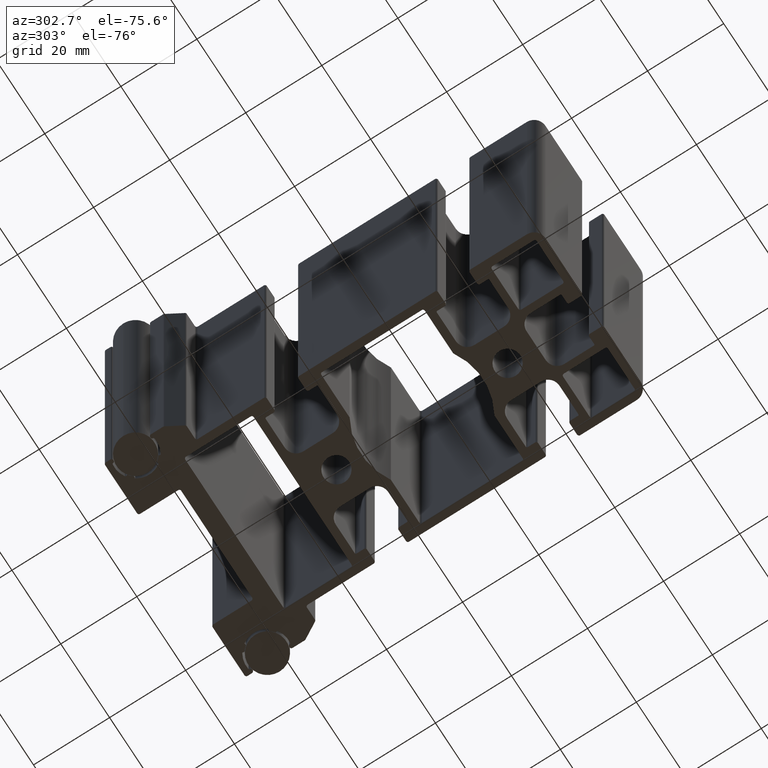
[diagram: clean part render]
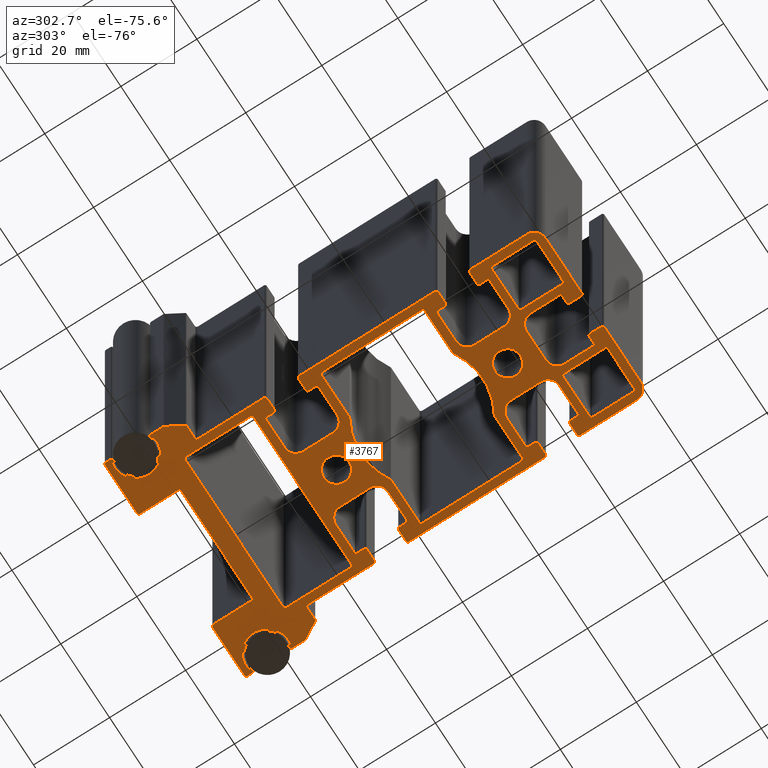
[diagram: same view with one face highlighted and labeled with its STEP entity id]
A machine part, auxiliary view. The second image highlights one B-rep face of the part: STEP entity #3767.
In plain terms, the highlighted planar face has unit normal (0, 0, 1).
Its self-contained STEP definition (entity closure, byte-faithful):
#31=FACE_BOUND('',#363,.T.);
#32=FACE_BOUND('',#364,.T.);
#33=FACE_BOUND('',#365,.T.);
#34=FACE_BOUND('',#366,.T.);
#35=FACE_BOUND('',#367,.T.);
#36=FACE_BOUND('',#368,.T.);
#61=PLANE('',#4080);
#163=FACE_OUTER_BOUND('',#362,.T.);
#362=EDGE_LOOP('',(#2602,#2603,#2604,#2605,#2606,#2607,#2608,#2609,#2610,
#2611,#2612,#2613,#2614,#2615,#2616,#2617,#2618,#2619,#2620,#2621,#2622,
#2623,#2624,#2625,#2626,#2627,#2628,#2629,#2630,#2631,#2632,#2633,#2634,
#2635,#2636,#2637,#2638,#2639,#2640,#2641,#2642,#2643,#2644,#2645,#2646,
#2647,#2648,#2649,#2650,#2651,#2652,#2653,#2654,#2655,#2656,#2657,#2658,
#2659,#2660,#2661,#2662,#2663,#2664,#2665,#2666,#2667,#2668,#2669,#2670,
#2671,#2672,#2673,#2674,#2675,#2676,#2677,#2678,#2679,#2680,#2681,#2682,
#2683,#2684,#2685,#2686,#2687,#2688,#2689,#2690,#2691,#2692,#2693,#2694,
#2695,#2696,#2697,#2698,#2699,#2700,#2701,#2702,#2703,#2704,#2705,#2706,
#2707,#2708,#2709,#2710,#2711,#2712,#2713,#2714,#2715,#2716,#2717,#2718,
#2719,#2720,#2721,#2722,#2723,#2724,#2725,#2726,#2727,#2728,#2729,#2730,
#2731,#2732,#2733,#2734,#2735,#2736,#2737,#2738,#2739,#2740,#2741,#2742,
#2743,#2744,#2745,#2746,#2747,#2748,#2749,#2750,#2751,#2752,#2753));
#363=EDGE_LOOP('',(#2754,#2755,#2756,#2757,#2758,#2759,#2760,#2761,#2762,
#2763,#2764,#2765,#2766,#2767,#2768,#2769));
#364=EDGE_LOOP('',(#2770,#2771,#2772,#2773,#2774,#2775,#2776,#2777));
#365=EDGE_LOOP('',(#2778,#2779,#2780,#2781,#2782,#2783,#2784,#2785));
#366=EDGE_LOOP('',(#2786,#2787,#2788,#2789,#2790,#2791,#2792,#2793));
#367=EDGE_LOOP('',(#2794));
#368=EDGE_LOOP('',(#2795));
#531=CIRCLE('',#3991,0.5);
#533=CIRCLE('',#3995,0.5);
#535=CIRCLE('',#3998,16.);
#537=CIRCLE('',#4001,0.5);
#539=CIRCLE('',#4005,0.5);
#541=CIRCLE('',#4009,0.5);
#543=CIRCLE('',#4013,0.5);
#545=CIRCLE('',#4016,16.);
#547=CIRCLE('',#4019,0.5);
#549=CIRCLE('',#4023,0.5);
#551=CIRCLE('',#4027,0.5);
#553=CIRCLE('',#4031,0.5);
#555=CIRCLE('',#4035,0.5);
#557=CIRCLE('',#4039,0.5);
#559=CIRCLE('',#4043,0.5);
#561=CIRCLE('',#4047,0.5);
#563=CIRCLE('',#4051,0.5);
#565=CIRCLE('',#4055,0.5);
#567=CIRCLE('',#4059,0.5);
#569=CIRCLE('',#4063,0.5);
#571=CIRCLE('',#4067,0.5);
#573=CIRCLE('',#4071,0.5);
#575=CIRCLE('',#4075,3.35);
#577=CIRCLE('',#4078,3.35);
#579=CIRCLE('',#4081,0.5);
#580=CIRCLE('',#4082,0.5);
#581=CIRCLE('',#4083,0.249999999995867);
#582=CIRCLE('',#4084,3.);
#583=CIRCLE('',#4085,3.);
#584=CIRCLE('',#4086,0.249999999995867);
#585=CIRCLE('',#4087,0.5);
#586=CIRCLE('',#4088,0.5);
#587=CIRCLE('',#4089,0.5);
#588=CIRCLE('',#4090,0.5);
#589=CIRCLE('',#4091,0.249999999995867);
#590=CIRCLE('',#4092,3.);
#591=CIRCLE('',#4093,3.);
#592=CIRCLE('',#4094,0.249999999995867);
#593=CIRCLE('',#4095,0.5);
#594=CIRCLE('',#4096,0.5);
#595=CIRCLE('',#4097,3.);
#596=CIRCLE('',#4098,0.5);
#597=CIRCLE('',#4099,0.5);
#598=CIRCLE('',#4100,0.249999999995867);
#599=CIRCLE('',#4101,3.);
#600=CIRCLE('',#4102,3.);
#601=CIRCLE('',#4103,0.249999999995867);
#602=CIRCLE('',#4104,0.5);
#603=CIRCLE('',#4105,0.5);
#604=CIRCLE('',#4106,3.);
#605=CIRCLE('',#4107,0.5);
#606=CIRCLE('',#4108,0.5);
#607=CIRCLE('',#4109,0.249999999995867);
#608=CIRCLE('',#4110,3.);
#609=CIRCLE('',#4111,3.);
#610=CIRCLE('',#4112,0.249999999995867);
#611=CIRCLE('',#4113,0.5);
#612=CIRCLE('',#4114,0.5);
#613=CIRCLE('',#4115,0.5);
#614=CIRCLE('',#4116,0.5);
#615=CIRCLE('',#4117,0.249999999995867);
#616=CIRCLE('',#4118,3.);
#617=CIRCLE('',#4119,3.);
#618=CIRCLE('',#4120,0.249999999995867);
#619=CIRCLE('',#4121,0.5);
#620=CIRCLE('',#4122,0.5);
#621=CIRCLE('',#4123,0.5);
#622=CIRCLE('',#4124,0.5);
#623=CIRCLE('',#4125,0.5);
#624=CIRCLE('',#4126,0.5);
#625=CIRCLE('',#4127,5.05000000000566);
#626=CIRCLE('',#4128,0.3);
#627=CIRCLE('',#4129,0.3);
#628=CIRCLE('',#4130,5.54999999999773);
#629=CIRCLE('',#4131,0.249999999995867);
#630=CIRCLE('',#4132,0.249999999995867);
#631=CIRCLE('',#4133,5.05000000000586);
#632=CIRCLE('',#4134,0.249999999995867);
#633=CIRCLE('',#4135,0.249999999995867);
#634=CIRCLE('',#4136,5.54999999999771);
#635=CIRCLE('',#4137,0.249999999995866);
#636=CIRCLE('',#4138,0.249999999995867);
#637=CIRCLE('',#4139,5.05000000000566);
#638=CIRCLE('',#4140,0.249999999995867);
#639=CIRCLE('',#4141,0.249999999995867);
#640=CIRCLE('',#4142,5.54999999999773);
#641=CIRCLE('',#4143,0.3);
#642=CIRCLE('',#4144,0.3);
#643=CIRCLE('',#4145,5.05000000000565);
#644=CIRCLE('',#4146,0.5);
#645=CIRCLE('',#4147,0.5);
#646=CIRCLE('',#4148,0.5);
#647=CIRCLE('',#4149,0.5);
#648=CIRCLE('',#4150,0.5);
#649=CIRCLE('',#4151,0.5);
#650=CIRCLE('',#4152,0.5);
#651=CIRCLE('',#4153,0.5);
#652=CIRCLE('',#4154,5.05000000000566);
#653=CIRCLE('',#4155,0.3);
#654=CIRCLE('',#4156,0.3);
#655=CIRCLE('',#4157,5.54999999999773);
#656=CIRCLE('',#4158,0.249999999995867);
#657=CIRCLE('',#4159,0.249999999995867);
#658=CIRCLE('',#4160,5.05000000000566);
#659=CIRCLE('',#4161,0.249999999995867);
#660=CIRCLE('',#4162,0.249999999995867);
#661=CIRCLE('',#4163,5.54999999999774);
#662=CIRCLE('',#4164,0.249999999995867);
#663=CIRCLE('',#4165,0.249999999995867);
#664=CIRCLE('',#4166,5.05000000000566);
#665=CIRCLE('',#4167,0.249999999995867);
#666=CIRCLE('',#4168,0.249999999995867);
#667=CIRCLE('',#4169,5.54999999999773);
#668=CIRCLE('',#4170,0.3);
#669=CIRCLE('',#4171,0.3);
#670=CIRCLE('',#4172,5.05000000000564);
#671=CIRCLE('',#4173,0.5);
#672=CIRCLE('',#4174,0.5);
#673=CIRCLE('',#4175,0.5);
#674=CIRCLE('',#4176,0.5);
#775=LINE('',#5685,#1118);
#781=LINE('',#5709,#1124);
#785=LINE('',#5721,#1128);
#789=LINE('',#5733,#1132);
#795=LINE('',#5757,#1138);
#799=LINE('',#5768,#1142);
#803=LINE('',#5781,#1146);
#807=LINE('',#5793,#1150);
#811=LINE('',#5805,#1154);
#815=LINE('',#5816,#1158);
#819=LINE('',#5829,#1162);
#823=LINE('',#5841,#1166);
#827=LINE('',#5853,#1170);
#831=LINE('',#5864,#1174);
#835=LINE('',#5877,#1178);
#839=LINE('',#5889,#1182);
#843=LINE('',#5901,#1186);
#847=LINE('',#5912,#1190);
#851=LINE('',#5929,#1194);
#852=LINE('',#5933,#1195);
#853=LINE('',#5937,#1196);
#854=LINE('',#5941,#1197);
#855=LINE('',#5945,#1198);
#856=LINE('',#5949,#1199);
#857=LINE('',#5953,#1200);
#858=LINE('',#5957,#1201);
#859=LINE('',#5961,#1202);
#860=LINE('',#5965,#1203);
#861=LINE('',#5969,#1204);
#862=LINE('',#5973,#1205);
#863=LINE('',#5977,#1206);
#864=LINE('',#5981,#1207);
#865=LINE('',#5985,#1208);
#866=LINE('',#5989,#1209);
#867=LINE('',#5993,#1210);
#868=LINE('',#5997,#1211);
#869=LINE('',#6001,#1212);
#870=LINE('',#6005,#1213);
#871=LINE('',#6009,#1214);
#872=LINE('',#6013,#1215);
#873=LINE('',#6017,#1216);
#874=LINE('',#6021,#1217);
#875=LINE('',#6025,#1218);
#876=LINE('',#6029,#1219);
#877=LINE('',#6033,#1220);
#878=LINE('',#6037,#1221);
#879=LINE('',#6041,#1222);
#880=LINE('',#6045,#1223);
#881=LINE('',#6049,#1224);
#882=LINE('',#6053,#1225);
#883=LINE('',#6057,#1226);
#884=LINE('',#6061,#1227);
#885=LINE('',#6065,#1228);
#886=LINE('',#6069,#1229);
#887=LINE('',#6073,#1230);
#888=LINE('',#6077,#1231);
#889=LINE('',#6081,#1232);
#890=LINE('',#6085,#1233);
#891=LINE('',#6089,#1234);
#892=LINE('',#6093,#1235);
#893=LINE('',#6097,#1236);
#894=LINE('',#6101,#1237);
#895=LINE('',#6105,#1238);
#896=LINE('',#6109,#1239);
#897=LINE('',#6153,#1240);
#898=LINE('',#6157,#1241);
#899=LINE('',#6161,#1242);
#900=LINE('',#6165,#1243);
#901=LINE('',#6169,#1244);
#902=LINE('',#6173,#1245);
#903=LINE('',#6177,#1246);
#904=LINE('',#6221,#1247);
#905=LINE('',#6225,#1248);
#906=LINE('',#6229,#1249);
#1118=VECTOR('',#4449,10.);
#1124=VECTOR('',#4475,10.);
#1128=VECTOR('',#4487,10.);
#1132=VECTOR('',#4499,10.);
#1138=VECTOR('',#4525,10.);
#1142=VECTOR('',#4537,10.);
#1146=VECTOR('',#4549,10.);
#1150=VECTOR('',#4561,10.);
#1154=VECTOR('',#4573,10.);
#1158=VECTOR('',#4585,10.);
#1162=VECTOR('',#4597,10.);
#1166=VECTOR('',#4609,10.);
#1170=VECTOR('',#4621,10.);
#1174=VECTOR('',#4633,10.);
#1178=VECTOR('',#4645,10.);
#1182=VECTOR('',#4657,10.);
#1186=VECTOR('',#4669,10.);
#1190=VECTOR('',#4681,10.);
#1194=VECTOR('',#4699,10.);
#1195=VECTOR('',#4702,10.);
#1196=VECTOR('',#4705,10.);
#1197=VECTOR('',#4708,10.);
#1198=VECTOR('',#4711,10.);
#1199=VECTOR('',#4714,10.);
#1200=VECTOR('',#4717,10.);
#1201=VECTOR('',#4720,10.);
#1202=VECTOR('',#4723,10.);
#1203=VECTOR('',#4726,10.);
#1204=VECTOR('',#4729,10.);
#1205=VECTOR('',#4732,10.);
#1206=VECTOR('',#4735,10.);
#1207=VECTOR('',#4738,10.);
#1208=VECTOR('',#4741,10.);
#1209=VECTOR('',#4744,10.);
#1210=VECTOR('',#4747,10.);
#1211=VECTOR('',#4750,10.);
#1212=VECTOR('',#4753,10.);
#1213=VECTOR('',#4756,10.);
#1214=VECTOR('',#4759,10.);
#1215=VECTOR('',#4762,10.);
#1216=VECTOR('',#4765,10.);
#1217=VECTOR('',#4768,10.);
#1218=VECTOR('',#4771,10.);
#1219=VECTOR('',#4774,10.);
#1220=VECTOR('',#4777,10.);
#1221=VECTOR('',#4780,10.);
#1222=VECTOR('',#4783,10.);
#1223=VECTOR('',#4786,10.);
#1224=VECTOR('',#4789,10.);
#1225=VECTOR('',#4792,10.);
#1226=VECTOR('',#4795,10.);
#1227=VECTOR('',#4798,10.);
#1228=VECTOR('',#4801,10.);
#1229=VECTOR('',#4804,10.);
#1230=VECTOR('',#4807,10.);
#1231=VECTOR('',#4810,10.);
#1232=VECTOR('',#4813,10.);
#1233=VECTOR('',#4816,10.);
#1234=VECTOR('',#4819,10.);
#1235=VECTOR('',#4822,10.);
#1236=VECTOR('',#4825,10.);
#1237=VECTOR('',#4828,10.);
#1238=VECTOR('',#4831,10.);
#1239=VECTOR('',#4834,10.);
#1240=VECTOR('',#4877,10.);
#1241=VECTOR('',#4880,10.);
#1242=VECTOR('',#4883,10.);
#1243=VECTOR('',#4886,10.);
#1244=VECTOR('',#4889,10.);
#1245=VECTOR('',#4892,10.);
#1246=VECTOR('',#4895,10.);
#1247=VECTOR('',#4938,10.);
#1248=VECTOR('',#4941,10.);
#1249=VECTOR('',#4944,10.);
#1460=VERTEX_POINT('',#5676);
#1461=VERTEX_POINT('',#5678);
#1463=VERTEX_POINT('',#5684);
#1465=VERTEX_POINT('',#5690);
#1467=VERTEX_POINT('',#5696);
#1469=VERTEX_POINT('',#5702);
#1471=VERTEX_POINT('',#5708);
#1473=VERTEX_POINT('',#5714);
#1475=VERTEX_POINT('',#5720);
#1477=VERTEX_POINT('',#5726);
#1479=VERTEX_POINT('',#5732);
#1481=VERTEX_POINT('',#5738);
#1483=VERTEX_POINT('',#5744);
#1485=VERTEX_POINT('',#5750);
#1487=VERTEX_POINT('',#5756);
#1489=VERTEX_POINT('',#5762);
#1492=VERTEX_POINT('',#5772);
#1493=VERTEX_POINT('',#5774);
#1495=VERTEX_POINT('',#5780);
#1497=VERTEX_POINT('',#5786);
#1499=VERTEX_POINT('',#5792);
#1501=VERTEX_POINT('',#5798);
#1503=VERTEX_POINT('',#5804);
#1505=VERTEX_POINT('',#5810);
#1508=VERTEX_POINT('',#5820);
#1509=VERTEX_POINT('',#5822);
#1511=VERTEX_POINT('',#5828);
#1513=VERTEX_POINT('',#5834);
#1515=VERTEX_POINT('',#5840);
#1517=VERTEX_POINT('',#5846);
#1519=VERTEX_POINT('',#5852);
#1521=VERTEX_POINT('',#5858);
#1524=VERTEX_POINT('',#5868);
#1525=VERTEX_POINT('',#5870);
#1527=VERTEX_POINT('',#5876);
#1529=VERTEX_POINT('',#5882);
#1531=VERTEX_POINT('',#5888);
#1533=VERTEX_POINT('',#5894);
#1535=VERTEX_POINT('',#5900);
#1537=VERTEX_POINT('',#5906);
#1539=VERTEX_POINT('',#5915);
#1541=VERTEX_POINT('',#5921);
#1543=VERTEX_POINT('',#5927);
#1544=VERTEX_POINT('',#5928);
#1545=VERTEX_POINT('',#5930);
#1546=VERTEX_POINT('',#5932);
#1547=VERTEX_POINT('',#5934);
#1548=VERTEX_POINT('',#5936);
#1549=VERTEX_POINT('',#5938);
#1550=VERTEX_POINT('',#5940);
#1551=VERTEX_POINT('',#5942);
#1552=VERTEX_POINT('',#5944);
#1553=VERTEX_POINT('',#5946);
#1554=VERTEX_POINT('',#5948);
#1555=VERTEX_POINT('',#5950);
#1556=VERTEX_POINT('',#5952);
#1557=VERTEX_POINT('',#5954);
#1558=VERTEX_POINT('',#5956);
#1559=VERTEX_POINT('',#5958);
#1560=VERTEX_POINT('',#5960);
#1561=VERTEX_POINT('',#5962);
#1562=VERTEX_POINT('',#5964);
#1563=VERTEX_POINT('',#5966);
#1564=VERTEX_POINT('',#5968);
#1565=VERTEX_POINT('',#5970);
#1566=VERTEX_POINT('',#5972);
#1567=VERTEX_POINT('',#5974);
#1568=VERTEX_POINT('',#5976);
#1569=VERTEX_POINT('',#5978);
#1570=VERTEX_POINT('',#5980);
#1571=VERTEX_POINT('',#5982);
#1572=VERTEX_POINT('',#5984);
#1573=VERTEX_POINT('',#5986);
#1574=VERTEX_POINT('',#5988);
#1575=VERTEX_POINT('',#5990);
#1576=VERTEX_POINT('',#5992);
#1577=VERTEX_POINT('',#5994);
#1578=VERTEX_POINT('',#5996);
#1579=VERTEX_POINT('',#5998);
#1580=VERTEX_POINT('',#6000);
#1581=VERTEX_POINT('',#6002);
#1582=VERTEX_POINT('',#6004);
#1583=VERTEX_POINT('',#6006);
#1584=VERTEX_POINT('',#6008);
#1585=VERTEX_POINT('',#6010);
#1586=VERTEX_POINT('',#6012);
#1587=VERTEX_POINT('',#6014);
#1588=VERTEX_POINT('',#6016);
#1589=VERTEX_POINT('',#6018);
#1590=VERTEX_POINT('',#6020);
#1591=VERTEX_POINT('',#6022);
#1592=VERTEX_POINT('',#6024);
#1593=VERTEX_POINT('',#6026);
#1594=VERTEX_POINT('',#6028);
#1595=VERTEX_POINT('',#6030);
#1596=VERTEX_POINT('',#6032);
#1597=VERTEX_POINT('',#6034);
#1598=VERTEX_POINT('',#6036);
#1599=VERTEX_POINT('',#6038);
#1600=VERTEX_POINT('',#6040);
#1601=VERTEX_POINT('',#6042);
#1602=VERTEX_POINT('',#6044);
#1603=VERTEX_POINT('',#6046);
#1604=VERTEX_POINT('',#6048);
#1605=VERTEX_POINT('',#6050);
#1606=VERTEX_POINT('',#6052);
#1607=VERTEX_POINT('',#6054);
#1608=VERTEX_POINT('',#6056);
#1609=VERTEX_POINT('',#6058);
#1610=VERTEX_POINT('',#6060);
#1611=VERTEX_POINT('',#6062);
#1612=VERTEX_POINT('',#6064);
#1613=VERTEX_POINT('',#6066);
#1614=VERTEX_POINT('',#6068);
#1615=VERTEX_POINT('',#6070);
#1616=VERTEX_POINT('',#6072);
#1617=VERTEX_POINT('',#6074);
#1618=VERTEX_POINT('',#6076);
#1619=VERTEX_POINT('',#6078);
#1620=VERTEX_POINT('',#6080);
#1621=VERTEX_POINT('',#6082);
#1622=VERTEX_POINT('',#6084);
#1623=VERTEX_POINT('',#6086);
#1624=VERTEX_POINT('',#6088);
#1625=VERTEX_POINT('',#6090);
#1626=VERTEX_POINT('',#6092);
#1627=VERTEX_POINT('',#6094);
#1628=VERTEX_POINT('',#6096);
#1629=VERTEX_POINT('',#6098);
#1630=VERTEX_POINT('',#6100);
#1631=VERTEX_POINT('',#6102);
#1632=VERTEX_POINT('',#6104);
#1633=VERTEX_POINT('',#6106);
#1634=VERTEX_POINT('',#6108);
#1635=VERTEX_POINT('',#6110);
#1636=VERTEX_POINT('',#6112);
#1637=VERTEX_POINT('',#6114);
#1638=VERTEX_POINT('',#6116);
#1639=VERTEX_POINT('',#6118);
#1640=VERTEX_POINT('',#6120);
#1641=VERTEX_POINT('',#6122);
#1642=VERTEX_POINT('',#6124);
#1643=VERTEX_POINT('',#6126);
#1644=VERTEX_POINT('',#6128);
#1645=VERTEX_POINT('',#6130);
#1646=VERTEX_POINT('',#6132);
#1647=VERTEX_POINT('',#6134);
#1648=VERTEX_POINT('',#6136);
#1649=VERTEX_POINT('',#6138);
#1650=VERTEX_POINT('',#6140);
#1651=VERTEX_POINT('',#6142);
#1652=VERTEX_POINT('',#6144);
#1653=VERTEX_POINT('',#6146);
#1654=VERTEX_POINT('',#6148);
#1655=VERTEX_POINT('',#6150);
#1656=VERTEX_POINT('',#6152);
#1657=VERTEX_POINT('',#6154);
#1658=VERTEX_POINT('',#6156);
#1659=VERTEX_POINT('',#6158);
#1660=VERTEX_POINT('',#6160);
#1661=VERTEX_POINT('',#6162);
#1662=VERTEX_POINT('',#6164);
#1663=VERTEX_POINT('',#6166);
#1664=VERTEX_POINT('',#6168);
#1665=VERTEX_POINT('',#6170);
#1666=VERTEX_POINT('',#6172);
#1667=VERTEX_POINT('',#6174);
#1668=VERTEX_POINT('',#6176);
#1669=VERTEX_POINT('',#6178);
#1670=VERTEX_POINT('',#6180);
#1671=VERTEX_POINT('',#6182);
#1672=VERTEX_POINT('',#6184);
#1673=VERTEX_POINT('',#6186);
#1674=VERTEX_POINT('',#6188);
#1675=VERTEX_POINT('',#6190);
#1676=VERTEX_POINT('',#6192);
#1677=VERTEX_POINT('',#6194);
#1678=VERTEX_POINT('',#6196);
#1679=VERTEX_POINT('',#6198);
#1680=VERTEX_POINT('',#6200);
#1681=VERTEX_POINT('',#6202);
#1682=VERTEX_POINT('',#6204);
#1683=VERTEX_POINT('',#6206);
#1684=VERTEX_POINT('',#6208);
#1685=VERTEX_POINT('',#6210);
#1686=VERTEX_POINT('',#6212);
#1687=VERTEX_POINT('',#6214);
#1688=VERTEX_POINT('',#6216);
#1689=VERTEX_POINT('',#6218);
#1690=VERTEX_POINT('',#6220);
#1691=VERTEX_POINT('',#6222);
#1692=VERTEX_POINT('',#6224);
#1693=VERTEX_POINT('',#6226);
#1694=VERTEX_POINT('',#6228);
#1850=EDGE_CURVE('',#1461,#1460,#531,.T.);
#1853=EDGE_CURVE('',#1463,#1461,#775,.T.);
#1856=EDGE_CURVE('',#1465,#1463,#533,.T.);
#1859=EDGE_CURVE('',#1467,#1465,#535,.T.);
#1862=EDGE_CURVE('',#1469,#1467,#537,.T.);
#1865=EDGE_CURVE('',#1471,#1469,#781,.T.);
#1868=EDGE_CURVE('',#1473,#1471,#539,.T.);
#1871=EDGE_CURVE('',#1475,#1473,#785,.T.);
#1874=EDGE_CURVE('',#1477,#1475,#541,.T.);
#1877=EDGE_CURVE('',#1479,#1477,#789,.T.);
#1880=EDGE_CURVE('',#1481,#1479,#543,.T.);
#1883=EDGE_CURVE('',#1483,#1481,#545,.T.);
#1886=EDGE_CURVE('',#1485,#1483,#547,.T.);
#1889=EDGE_CURVE('',#1487,#1485,#795,.T.);
#1892=EDGE_CURVE('',#1489,#1487,#549,.T.);
#1895=EDGE_CURVE('',#1460,#1489,#799,.T.);
#1898=EDGE_CURVE('',#1493,#1492,#551,.T.);
#1901=EDGE_CURVE('',#1495,#1493,#803,.T.);
#1904=EDGE_CURVE('',#1497,#1495,#553,.T.);
#1907=EDGE_CURVE('',#1499,#1497,#807,.T.);
#1910=EDGE_CURVE('',#1501,#1499,#555,.T.);
#1913=EDGE_CURVE('',#1503,#1501,#811,.T.);
#1916=EDGE_CURVE('',#1505,#1503,#557,.T.);
#1919=EDGE_CURVE('',#1492,#1505,#815,.T.);
#1922=EDGE_CURVE('',#1509,#1508,#559,.T.);
#1925=EDGE_CURVE('',#1511,#1509,#819,.T.);
#1928=EDGE_CURVE('',#1513,#1511,#561,.T.);
#1931=EDGE_CURVE('',#1515,#1513,#823,.T.);
#1934=EDGE_CURVE('',#1517,#1515,#563,.T.);
#1937=EDGE_CURVE('',#1519,#1517,#827,.T.);
#1940=EDGE_CURVE('',#1521,#1519,#565,.T.);
#1943=EDGE_CURVE('',#1508,#1521,#831,.T.);
#1946=EDGE_CURVE('',#1525,#1524,#567,.T.);
#1949=EDGE_CURVE('',#1527,#1525,#835,.T.);
#1952=EDGE_CURVE('',#1529,#1527,#569,.T.);
#1955=EDGE_CURVE('',#1531,#1529,#839,.T.);
#1958=EDGE_CURVE('',#1533,#1531,#571,.T.);
#1961=EDGE_CURVE('',#1535,#1533,#843,.T.);
#1964=EDGE_CURVE('',#1537,#1535,#573,.T.);
#1967=EDGE_CURVE('',#1524,#1537,#847,.T.);
#1969=EDGE_CURVE('',#1539,#1539,#575,.T.);
#1972=EDGE_CURVE('',#1541,#1541,#577,.T.);
#1975=EDGE_CURVE('',#1543,#1544,#851,.T.);
#1976=EDGE_CURVE('',#1544,#1545,#579,.T.);
#1977=EDGE_CURVE('',#1545,#1546,#852,.T.);
#1978=EDGE_CURVE('',#1546,#1547,#580,.T.);
#1979=EDGE_CURVE('',#1547,#1548,#853,.T.);
#1980=EDGE_CURVE('',#1548,#1549,#581,.T.);
#1981=EDGE_CURVE('',#1549,#1550,#854,.T.);
#1982=EDGE_CURVE('',#1550,#1551,#582,.T.);
#1983=EDGE_CURVE('',#1551,#1552,#855,.T.);
#1984=EDGE_CURVE('',#1552,#1553,#583,.T.);
#1985=EDGE_CURVE('',#1553,#1554,#856,.T.);
#1986=EDGE_CURVE('',#1554,#1555,#584,.T.);
#1987=EDGE_CURVE('',#1555,#1556,#857,.T.);
#1988=EDGE_CURVE('',#1556,#1557,#585,.T.);
#1989=EDGE_CURVE('',#1557,#1558,#858,.T.);
#1990=EDGE_CURVE('',#1558,#1559,#586,.T.);
#1991=EDGE_CURVE('',#1559,#1560,#859,.T.);
#1992=EDGE_CURVE('',#1560,#1561,#587,.T.);
#1993=EDGE_CURVE('',#1561,#1562,#860,.T.);
#1994=EDGE_CURVE('',#1562,#1563,#588,.T.);
#1995=EDGE_CURVE('',#1563,#1564,#861,.T.);
#1996=EDGE_CURVE('',#1564,#1565,#589,.T.);
#1997=EDGE_CURVE('',#1565,#1566,#862,.T.);
#1998=EDGE_CURVE('',#1566,#1567,#590,.T.);
#1999=EDGE_CURVE('',#1567,#1568,#863,.T.);
#2000=EDGE_CURVE('',#1568,#1569,#591,.T.);
#2001=EDGE_CURVE('',#1569,#1570,#864,.T.);
#2002=EDGE_CURVE('',#1570,#1571,#592,.T.);
#2003=EDGE_CURVE('',#1571,#1572,#865,.T.);
#2004=EDGE_CURVE('',#1572,#1573,#593,.T.);
#2005=EDGE_CURVE('',#1573,#1574,#866,.T.);
#2006=EDGE_CURVE('',#1574,#1575,#594,.T.);
#2007=EDGE_CURVE('',#1575,#1576,#867,.T.);
#2008=EDGE_CURVE('',#1576,#1577,#595,.T.);
#2009=EDGE_CURVE('',#1577,#1578,#868,.T.);
#2010=EDGE_CURVE('',#1578,#1579,#596,.T.);
#2011=EDGE_CURVE('',#1579,#1580,#869,.T.);
#2012=EDGE_CURVE('',#1580,#1581,#597,.T.);
#2013=EDGE_CURVE('',#1581,#1582,#870,.T.);
#2014=EDGE_CURVE('',#1582,#1583,#598,.T.);
#2015=EDGE_CURVE('',#1583,#1584,#871,.T.);
#2016=EDGE_CURVE('',#1584,#1585,#599,.T.);
#2017=EDGE_CURVE('',#1585,#1586,#872,.T.);
#2018=EDGE_CURVE('',#1586,#1587,#600,.T.);
#2019=EDGE_CURVE('',#1587,#1588,#873,.T.);
#2020=EDGE_CURVE('',#1588,#1589,#601,.T.);
#2021=EDGE_CURVE('',#1589,#1590,#874,.T.);
#2022=EDGE_CURVE('',#1590,#1591,#602,.T.);
#2023=EDGE_CURVE('',#1591,#1592,#875,.T.);
#2024=EDGE_CURVE('',#1592,#1593,#603,.T.);
#2025=EDGE_CURVE('',#1593,#1594,#876,.T.);
#2026=EDGE_CURVE('',#1594,#1595,#604,.T.);
#2027=EDGE_CURVE('',#1595,#1596,#877,.T.);
#2028=EDGE_CURVE('',#1596,#1597,#605,.T.);
#2029=EDGE_CURVE('',#1597,#1598,#878,.T.);
#2030=EDGE_CURVE('',#1598,#1599,#606,.T.);
#2031=EDGE_CURVE('',#1599,#1600,#879,.T.);
#2032=EDGE_CURVE('',#1600,#1601,#607,.T.);
#2033=EDGE_CURVE('',#1601,#1602,#880,.T.);
#2034=EDGE_CURVE('',#1602,#1603,#608,.T.);
#2035=EDGE_CURVE('',#1603,#1604,#881,.T.);
#2036=EDGE_CURVE('',#1604,#1605,#609,.T.);
#2037=EDGE_CURVE('',#1605,#1606,#882,.T.);
#2038=EDGE_CURVE('',#1606,#1607,#610,.T.);
#2039=EDGE_CURVE('',#1607,#1608,#883,.T.);
#2040=EDGE_CURVE('',#1608,#1609,#611,.T.);
#2041=EDGE_CURVE('',#1609,#1610,#884,.T.);
#2042=EDGE_CURVE('',#1610,#1611,#612,.T.);
#2043=EDGE_CURVE('',#1611,#1612,#885,.T.);
#2044=EDGE_CURVE('',#1612,#1613,#613,.T.);
#2045=EDGE_CURVE('',#1613,#1614,#886,.T.);
#2046=EDGE_CURVE('',#1614,#1615,#614,.T.);
#2047=EDGE_CURVE('',#1615,#1616,#887,.T.);
#2048=EDGE_CURVE('',#1616,#1617,#615,.T.);
#2049=EDGE_CURVE('',#1617,#1618,#888,.T.);
#2050=EDGE_CURVE('',#1618,#1619,#616,.T.);
#2051=EDGE_CURVE('',#1619,#1620,#889,.T.);
#2052=EDGE_CURVE('',#1620,#1621,#617,.T.);
#2053=EDGE_CURVE('',#1621,#1622,#890,.T.);
#2054=EDGE_CURVE('',#1622,#1623,#618,.T.);
#2055=EDGE_CURVE('',#1623,#1624,#891,.T.);
#2056=EDGE_CURVE('',#1624,#1625,#619,.T.);
#2057=EDGE_CURVE('',#1625,#1626,#892,.T.);
#2058=EDGE_CURVE('',#1626,#1627,#620,.T.);
#2059=EDGE_CURVE('',#1627,#1628,#893,.T.);
#2060=EDGE_CURVE('',#1628,#1629,#621,.T.);
#2061=EDGE_CURVE('',#1629,#1630,#894,.T.);
#2062=EDGE_CURVE('',#1630,#1631,#622,.T.);
#2063=EDGE_CURVE('',#1631,#1632,#895,.T.);
#2064=EDGE_CURVE('',#1632,#1633,#623,.T.);
#2065=EDGE_CURVE('',#1633,#1634,#896,.T.);
#2066=EDGE_CURVE('',#1634,#1635,#624,.T.);
#2067=EDGE_CURVE('',#1635,#1636,#625,.T.);
#2068=EDGE_CURVE('',#1636,#1637,#626,.T.);
#2069=EDGE_CURVE('',#1637,#1638,#627,.T.);
#2070=EDGE_CURVE('',#1638,#1639,#628,.T.);
#2071=EDGE_CURVE('',#1639,#1640,#629,.T.);
#2072=EDGE_CURVE('',#1640,#1641,#630,.T.);
#2073=EDGE_CURVE('',#1641,#1642,#631,.T.);
#2074=EDGE_CURVE('',#1642,#1643,#632,.T.);
#2075=EDGE_CURVE('',#1643,#1644,#633,.T.);
#2076=EDGE_CURVE('',#1644,#1645,#634,.T.);
#2077=EDGE_CURVE('',#1645,#1646,#635,.T.);
#2078=EDGE_CURVE('',#1646,#1647,#636,.T.);
#2079=EDGE_CURVE('',#1647,#1648,#637,.T.);
#2080=EDGE_CURVE('',#1648,#1649,#638,.T.);
#2081=EDGE_CURVE('',#1649,#1650,#639,.T.);
#2082=EDGE_CURVE('',#1650,#1651,#640,.T.);
#2083=EDGE_CURVE('',#1651,#1652,#641,.T.);
#2084=EDGE_CURVE('',#1652,#1653,#642,.T.);
#2085=EDGE_CURVE('',#1653,#1654,#643,.T.);
#2086=EDGE_CURVE('',#1654,#1655,#644,.T.);
#2087=EDGE_CURVE('',#1655,#1656,#897,.T.);
#2088=EDGE_CURVE('',#1656,#1657,#645,.T.);
#2089=EDGE_CURVE('',#1657,#1658,#898,.T.);
#2090=EDGE_CURVE('',#1658,#1659,#646,.T.);
#2091=EDGE_CURVE('',#1659,#1660,#899,.T.);
#2092=EDGE_CURVE('',#1660,#1661,#647,.T.);
#2093=EDGE_CURVE('',#1661,#1662,#900,.T.);
#2094=EDGE_CURVE('',#1662,#1663,#648,.T.);
#2095=EDGE_CURVE('',#1663,#1664,#901,.T.);
#2096=EDGE_CURVE('',#1664,#1665,#649,.T.);
#2097=EDGE_CURVE('',#1665,#1666,#902,.T.);
#2098=EDGE_CURVE('',#1666,#1667,#650,.T.);
#2099=EDGE_CURVE('',#1667,#1668,#903,.T.);
#2100=EDGE_CURVE('',#1668,#1669,#651,.T.);
#2101=EDGE_CURVE('',#1669,#1670,#652,.T.);
#2102=EDGE_CURVE('',#1670,#1671,#653,.T.);
#2103=EDGE_CURVE('',#1671,#1672,#654,.T.);
#2104=EDGE_CURVE('',#1672,#1673,#655,.T.);
#2105=EDGE_CURVE('',#1673,#1674,#656,.T.);
#2106=EDGE_CURVE('',#1674,#1675,#657,.T.);
#2107=EDGE_CURVE('',#1675,#1676,#658,.T.);
#2108=EDGE_CURVE('',#1676,#1677,#659,.T.);
#2109=EDGE_CURVE('',#1677,#1678,#660,.T.);
#2110=EDGE_CURVE('',#1678,#1679,#661,.T.);
#2111=EDGE_CURVE('',#1679,#1680,#662,.T.);
#2112=EDGE_CURVE('',#1680,#1681,#663,.T.);
#2113=EDGE_CURVE('',#1681,#1682,#664,.T.);
#2114=EDGE_CURVE('',#1682,#1683,#665,.T.);
#2115=EDGE_CURVE('',#1683,#1684,#666,.T.);
#2116=EDGE_CURVE('',#1684,#1685,#667,.T.);
#2117=EDGE_CURVE('',#1685,#1686,#668,.T.);
#2118=EDGE_CURVE('',#1686,#1687,#669,.T.);
#2119=EDGE_CURVE('',#1687,#1688,#670,.T.);
#2120=EDGE_CURVE('',#1688,#1689,#671,.T.);
#2121=EDGE_CURVE('',#1689,#1690,#904,.T.);
#2122=EDGE_CURVE('',#1690,#1691,#672,.T.);
#2123=EDGE_CURVE('',#1691,#1692,#905,.T.);
#2124=EDGE_CURVE('',#1692,#1693,#673,.T.);
#2125=EDGE_CURVE('',#1693,#1694,#906,.T.);
#2126=EDGE_CURVE('',#1694,#1543,#674,.T.);
#2602=ORIENTED_EDGE('',*,*,#1975,.T.);
#2603=ORIENTED_EDGE('',*,*,#1976,.T.);
#2604=ORIENTED_EDGE('',*,*,#1977,.T.);
#2605=ORIENTED_EDGE('',*,*,#1978,.T.);
#2606=ORIENTED_EDGE('',*,*,#1979,.T.);
#2607=ORIENTED_EDGE('',*,*,#1980,.T.);
#2608=ORIENTED_EDGE('',*,*,#1981,.T.);
#2609=ORIENTED_EDGE('',*,*,#1982,.T.);
#2610=ORIENTED_EDGE('',*,*,#1983,.T.);
#2611=ORIENTED_EDGE('',*,*,#1984,.T.);
#2612=ORIENTED_EDGE('',*,*,#1985,.T.);
#2613=ORIENTED_EDGE('',*,*,#1986,.T.);
#2614=ORIENTED_EDGE('',*,*,#1987,.T.);
#2615=ORIENTED_EDGE('',*,*,#1988,.T.);
#2616=ORIENTED_EDGE('',*,*,#1989,.T.);
#2617=ORIENTED_EDGE('',*,*,#1990,.T.);
#2618=ORIENTED_EDGE('',*,*,#1991,.T.);
#2619=ORIENTED_EDGE('',*,*,#1992,.T.);
#2620=ORIENTED_EDGE('',*,*,#1993,.T.);
#2621=ORIENTED_EDGE('',*,*,#1994,.T.);
#2622=ORIENTED_EDGE('',*,*,#1995,.T.);
#2623=ORIENTED_EDGE('',*,*,#1996,.T.);
#2624=ORIENTED_EDGE('',*,*,#1997,.T.);
#2625=ORIENTED_EDGE('',*,*,#1998,.T.);
#2626=ORIENTED_EDGE('',*,*,#1999,.T.);
#2627=ORIENTED_EDGE('',*,*,#2000,.T.);
#2628=ORIENTED_EDGE('',*,*,#2001,.T.);
#2629=ORIENTED_EDGE('',*,*,#2002,.T.);
#2630=ORIENTED_EDGE('',*,*,#2003,.T.);
#2631=ORIENTED_EDGE('',*,*,#2004,.T.);
#2632=ORIENTED_EDGE('',*,*,#2005,.T.);
#2633=ORIENTED_EDGE('',*,*,#2006,.T.);
#2634=ORIENTED_EDGE('',*,*,#2007,.T.);
#2635=ORIENTED_EDGE('',*,*,#2008,.T.);
#2636=ORIENTED_EDGE('',*,*,#2009,.T.);
#2637=ORIENTED_EDGE('',*,*,#2010,.T.);
#2638=ORIENTED_EDGE('',*,*,#2011,.T.);
#2639=ORIENTED_EDGE('',*,*,#2012,.T.);
#2640=ORIENTED_EDGE('',*,*,#2013,.T.);
#2641=ORIENTED_EDGE('',*,*,#2014,.T.);
#2642=ORIENTED_EDGE('',*,*,#2015,.T.);
#2643=ORIENTED_EDGE('',*,*,#2016,.T.);
#2644=ORIENTED_EDGE('',*,*,#2017,.T.);
#2645=ORIENTED_EDGE('',*,*,#2018,.T.);
#2646=ORIENTED_EDGE('',*,*,#2019,.T.);
#2647=ORIENTED_EDGE('',*,*,#2020,.T.);
#2648=ORIENTED_EDGE('',*,*,#2021,.T.);
#2649=ORIENTED_EDGE('',*,*,#2022,.T.);
#2650=ORIENTED_EDGE('',*,*,#2023,.T.);
#2651=ORIENTED_EDGE('',*,*,#2024,.T.);
#2652=ORIENTED_EDGE('',*,*,#2025,.T.);
#2653=ORIENTED_EDGE('',*,*,#2026,.T.);
#2654=ORIENTED_EDGE('',*,*,#2027,.T.);
#2655=ORIENTED_EDGE('',*,*,#2028,.T.);
#2656=ORIENTED_EDGE('',*,*,#2029,.T.);
#2657=ORIENTED_EDGE('',*,*,#2030,.T.);
#2658=ORIENTED_EDGE('',*,*,#2031,.T.);
#2659=ORIENTED_EDGE('',*,*,#2032,.T.);
#2660=ORIENTED_EDGE('',*,*,#2033,.T.);
#2661=ORIENTED_EDGE('',*,*,#2034,.T.);
#2662=ORIENTED_EDGE('',*,*,#2035,.T.);
#2663=ORIENTED_EDGE('',*,*,#2036,.T.);
#2664=ORIENTED_EDGE('',*,*,#2037,.T.);
#2665=ORIENTED_EDGE('',*,*,#2038,.T.);
#2666=ORIENTED_EDGE('',*,*,#2039,.T.);
#2667=ORIENTED_EDGE('',*,*,#2040,.T.);
#2668=ORIENTED_EDGE('',*,*,#2041,.T.);
#2669=ORIENTED_EDGE('',*,*,#2042,.T.);
#2670=ORIENTED_EDGE('',*,*,#2043,.T.);
#2671=ORIENTED_EDGE('',*,*,#2044,.T.);
#2672=ORIENTED_EDGE('',*,*,#2045,.T.);
#2673=ORIENTED_EDGE('',*,*,#2046,.T.);
#2674=ORIENTED_EDGE('',*,*,#2047,.T.);
#2675=ORIENTED_EDGE('',*,*,#2048,.T.);
#2676=ORIENTED_EDGE('',*,*,#2049,.T.);
#2677=ORIENTED_EDGE('',*,*,#2050,.T.);
#2678=ORIENTED_EDGE('',*,*,#2051,.T.);
#2679=ORIENTED_EDGE('',*,*,#2052,.T.);
#2680=ORIENTED_EDGE('',*,*,#2053,.T.);
#2681=ORIENTED_EDGE('',*,*,#2054,.T.);
#2682=ORIENTED_EDGE('',*,*,#2055,.T.);
#2683=ORIENTED_EDGE('',*,*,#2056,.T.);
#2684=ORIENTED_EDGE('',*,*,#2057,.T.);
#2685=ORIENTED_EDGE('',*,*,#2058,.T.);
#2686=ORIENTED_EDGE('',*,*,#2059,.T.);
#2687=ORIENTED_EDGE('',*,*,#2060,.T.);
#2688=ORIENTED_EDGE('',*,*,#2061,.T.);
#2689=ORIENTED_EDGE('',*,*,#2062,.T.);
#2690=ORIENTED_EDGE('',*,*,#2063,.T.);
#2691=ORIENTED_EDGE('',*,*,#2064,.T.);
#2692=ORIENTED_EDGE('',*,*,#2065,.T.);
#2693=ORIENTED_EDGE('',*,*,#2066,.T.);
#2694=ORIENTED_EDGE('',*,*,#2067,.T.);
#2695=ORIENTED_EDGE('',*,*,#2068,.T.);
#2696=ORIENTED_EDGE('',*,*,#2069,.T.);
#2697=ORIENTED_EDGE('',*,*,#2070,.T.);
#2698=ORIENTED_EDGE('',*,*,#2071,.T.);
#2699=ORIENTED_EDGE('',*,*,#2072,.T.);
#2700=ORIENTED_EDGE('',*,*,#2073,.T.);
#2701=ORIENTED_EDGE('',*,*,#2074,.T.);
#2702=ORIENTED_EDGE('',*,*,#2075,.T.);
#2703=ORIENTED_EDGE('',*,*,#2076,.T.);
#2704=ORIENTED_EDGE('',*,*,#2077,.T.);
#2705=ORIENTED_EDGE('',*,*,#2078,.T.);
#2706=ORIENTED_EDGE('',*,*,#2079,.T.);
#2707=ORIENTED_EDGE('',*,*,#2080,.T.);
#2708=ORIENTED_EDGE('',*,*,#2081,.T.);
#2709=ORIENTED_EDGE('',*,*,#2082,.T.);
#2710=ORIENTED_EDGE('',*,*,#2083,.T.);
#2711=ORIENTED_EDGE('',*,*,#2084,.T.);
#2712=ORIENTED_EDGE('',*,*,#2085,.T.);
#2713=ORIENTED_EDGE('',*,*,#2086,.T.);
#2714=ORIENTED_EDGE('',*,*,#2087,.T.);
#2715=ORIENTED_EDGE('',*,*,#2088,.T.);
#2716=ORIENTED_EDGE('',*,*,#2089,.T.);
#2717=ORIENTED_EDGE('',*,*,#2090,.T.);
#2718=ORIENTED_EDGE('',*,*,#2091,.T.);
#2719=ORIENTED_EDGE('',*,*,#2092,.T.);
#2720=ORIENTED_EDGE('',*,*,#2093,.T.);
#2721=ORIENTED_EDGE('',*,*,#2094,.T.);
#2722=ORIENTED_EDGE('',*,*,#2095,.T.);
#2723=ORIENTED_EDGE('',*,*,#2096,.T.);
#2724=ORIENTED_EDGE('',*,*,#2097,.T.);
#2725=ORIENTED_EDGE('',*,*,#2098,.T.);
#2726=ORIENTED_EDGE('',*,*,#2099,.T.);
#2727=ORIENTED_EDGE('',*,*,#2100,.T.);
#2728=ORIENTED_EDGE('',*,*,#2101,.T.);
#2729=ORIENTED_EDGE('',*,*,#2102,.T.);
#2730=ORIENTED_EDGE('',*,*,#2103,.T.);
#2731=ORIENTED_EDGE('',*,*,#2104,.T.);
#2732=ORIENTED_EDGE('',*,*,#2105,.T.);
#2733=ORIENTED_EDGE('',*,*,#2106,.T.);
#2734=ORIENTED_EDGE('',*,*,#2107,.T.);
#2735=ORIENTED_EDGE('',*,*,#2108,.T.);
#2736=ORIENTED_EDGE('',*,*,#2109,.T.);
#2737=ORIENTED_EDGE('',*,*,#2110,.T.);
#2738=ORIENTED_EDGE('',*,*,#2111,.T.);
#2739=ORIENTED_EDGE('',*,*,#2112,.T.);
#2740=ORIENTED_EDGE('',*,*,#2113,.T.);
#2741=ORIENTED_EDGE('',*,*,#2114,.T.);
#2742=ORIENTED_EDGE('',*,*,#2115,.T.);
#2743=ORIENTED_EDGE('',*,*,#2116,.T.);
#2744=ORIENTED_EDGE('',*,*,#2117,.T.);
#2745=ORIENTED_EDGE('',*,*,#2118,.T.);
#2746=ORIENTED_EDGE('',*,*,#2119,.T.);
#2747=ORIENTED_EDGE('',*,*,#2120,.T.);
#2748=ORIENTED_EDGE('',*,*,#2121,.T.);
#2749=ORIENTED_EDGE('',*,*,#2122,.T.);
#2750=ORIENTED_EDGE('',*,*,#2123,.T.);
#2751=ORIENTED_EDGE('',*,*,#2124,.T.);
#2752=ORIENTED_EDGE('',*,*,#2125,.T.);
#2753=ORIENTED_EDGE('',*,*,#2126,.T.);
#2754=ORIENTED_EDGE('',*,*,#1850,.T.);
#2755=ORIENTED_EDGE('',*,*,#1895,.T.);
#2756=ORIENTED_EDGE('',*,*,#1892,.T.);
#2757=ORIENTED_EDGE('',*,*,#1889,.T.);
#2758=ORIENTED_EDGE('',*,*,#1886,.T.);
#2759=ORIENTED_EDGE('',*,*,#1883,.T.);
#2760=ORIENTED_EDGE('',*,*,#1880,.T.);
#2761=ORIENTED_EDGE('',*,*,#1877,.T.);
#2762=ORIENTED_EDGE('',*,*,#1874,.T.);
#2763=ORIENTED_EDGE('',*,*,#1871,.T.);
#2764=ORIENTED_EDGE('',*,*,#1868,.T.);
#2765=ORIENTED_EDGE('',*,*,#1865,.T.);
#2766=ORIENTED_EDGE('',*,*,#1862,.T.);
#2767=ORIENTED_EDGE('',*,*,#1859,.T.);
#2768=ORIENTED_EDGE('',*,*,#1856,.T.);
#2769=ORIENTED_EDGE('',*,*,#1853,.T.);
#2770=ORIENTED_EDGE('',*,*,#1898,.T.);
#2771=ORIENTED_EDGE('',*,*,#1919,.T.);
#2772=ORIENTED_EDGE('',*,*,#1916,.T.);
#2773=ORIENTED_EDGE('',*,*,#1913,.T.);
#2774=ORIENTED_EDGE('',*,*,#1910,.T.);
#2775=ORIENTED_EDGE('',*,*,#1907,.T.);
#2776=ORIENTED_EDGE('',*,*,#1904,.T.);
#2777=ORIENTED_EDGE('',*,*,#1901,.T.);
#2778=ORIENTED_EDGE('',*,*,#1922,.T.);
#2779=ORIENTED_EDGE('',*,*,#1943,.T.);
#2780=ORIENTED_EDGE('',*,*,#1940,.T.);
#2781=ORIENTED_EDGE('',*,*,#1937,.T.);
#2782=ORIENTED_EDGE('',*,*,#1934,.T.);
#2783=ORIENTED_EDGE('',*,*,#1931,.T.);
#2784=ORIENTED_EDGE('',*,*,#1928,.T.);
#2785=ORIENTED_EDGE('',*,*,#1925,.T.);
#2786=ORIENTED_EDGE('',*,*,#1946,.T.);
#2787=ORIENTED_EDGE('',*,*,#1967,.T.);
#2788=ORIENTED_EDGE('',*,*,#1964,.T.);
#2789=ORIENTED_EDGE('',*,*,#1961,.T.);
#2790=ORIENTED_EDGE('',*,*,#1958,.T.);
#2791=ORIENTED_EDGE('',*,*,#1955,.T.);
#2792=ORIENTED_EDGE('',*,*,#1952,.T.);
#2793=ORIENTED_EDGE('',*,*,#1949,.T.);
#2794=ORIENTED_EDGE('',*,*,#1969,.T.);
#2795=ORIENTED_EDGE('',*,*,#1972,.T.);
#3767=ADVANCED_FACE('',(#163,#31,#32,#33,#34,#35,#36),#61,.F.);
#3991=AXIS2_PLACEMENT_3D('',#5679,#4442,#4443);
#3995=AXIS2_PLACEMENT_3D('',#5691,#4454,#4455);
#3998=AXIS2_PLACEMENT_3D('',#5697,#4461,#4462);
#4001=AXIS2_PLACEMENT_3D('',#5703,#4468,#4469);
#4005=AXIS2_PLACEMENT_3D('',#5715,#4480,#4481);
#4009=AXIS2_PLACEMENT_3D('',#5727,#4492,#4493);
#4013=AXIS2_PLACEMENT_3D('',#5739,#4504,#4505);
#4016=AXIS2_PLACEMENT_3D('',#5745,#4511,#4512);
#4019=AXIS2_PLACEMENT_3D('',#5751,#4518,#4519);
#4023=AXIS2_PLACEMENT_3D('',#5763,#4530,#4531);
#4027=AXIS2_PLACEMENT_3D('',#5775,#4542,#4543);
#4031=AXIS2_PLACEMENT_3D('',#5787,#4554,#4555);
#4035=AXIS2_PLACEMENT_3D('',#5799,#4566,#4567);
#4039=AXIS2_PLACEMENT_3D('',#5811,#4578,#4579);
#4043=AXIS2_PLACEMENT_3D('',#5823,#4590,#4591);
#4047=AXIS2_PLACEMENT_3D('',#5835,#4602,#4603);
#4051=AXIS2_PLACEMENT_3D('',#5847,#4614,#4615);
#4055=AXIS2_PLACEMENT_3D('',#5859,#4626,#4627);
#4059=AXIS2_PLACEMENT_3D('',#5871,#4638,#4639);
#4063=AXIS2_PLACEMENT_3D('',#5883,#4650,#4651);
#4067=AXIS2_PLACEMENT_3D('',#5895,#4662,#4663);
#4071=AXIS2_PLACEMENT_3D('',#5907,#4674,#4675);
#4075=AXIS2_PLACEMENT_3D('',#5916,#4685,#4686);
#4078=AXIS2_PLACEMENT_3D('',#5922,#4692,#4693);
#4080=AXIS2_PLACEMENT_3D('',#5926,#4697,#4698);
#4081=AXIS2_PLACEMENT_3D('',#5931,#4700,#4701);
#4082=AXIS2_PLACEMENT_3D('',#5935,#4703,#4704);
#4083=AXIS2_PLACEMENT_3D('',#5939,#4706,#4707);
#4084=AXIS2_PLACEMENT_3D('',#5943,#4709,#4710);
#4085=AXIS2_PLACEMENT_3D('',#5947,#4712,#4713);
#4086=AXIS2_PLACEMENT_3D('',#5951,#4715,#4716);
#4087=AXIS2_PLACEMENT_3D('',#5955,#4718,#4719);
#4088=AXIS2_PLACEMENT_3D('',#5959,#4721,#4722);
#4089=AXIS2_PLACEMENT_3D('',#5963,#4724,#4725);
#4090=AXIS2_PLACEMENT_3D('',#5967,#4727,#4728);
#4091=AXIS2_PLACEMENT_3D('',#5971,#4730,#4731);
#4092=AXIS2_PLACEMENT_3D('',#5975,#4733,#4734);
#4093=AXIS2_PLACEMENT_3D('',#5979,#4736,#4737);
#4094=AXIS2_PLACEMENT_3D('',#5983,#4739,#4740);
#4095=AXIS2_PLACEMENT_3D('',#5987,#4742,#4743);
#4096=AXIS2_PLACEMENT_3D('',#5991,#4745,#4746);
#4097=AXIS2_PLACEMENT_3D('',#5995,#4748,#4749);
#4098=AXIS2_PLACEMENT_3D('',#5999,#4751,#4752);
#4099=AXIS2_PLACEMENT_3D('',#6003,#4754,#4755);
#4100=AXIS2_PLACEMENT_3D('',#6007,#4757,#4758);
#4101=AXIS2_PLACEMENT_3D('',#6011,#4760,#4761);
#4102=AXIS2_PLACEMENT_3D('',#6015,#4763,#4764);
#4103=AXIS2_PLACEMENT_3D('',#6019,#4766,#4767);
#4104=AXIS2_PLACEMENT_3D('',#6023,#4769,#4770);
#4105=AXIS2_PLACEMENT_3D('',#6027,#4772,#4773);
#4106=AXIS2_PLACEMENT_3D('',#6031,#4775,#4776);
#4107=AXIS2_PLACEMENT_3D('',#6035,#4778,#4779);
#4108=AXIS2_PLACEMENT_3D('',#6039,#4781,#4782);
#4109=AXIS2_PLACEMENT_3D('',#6043,#4784,#4785);
#4110=AXIS2_PLACEMENT_3D('',#6047,#4787,#4788);
#4111=AXIS2_PLACEMENT_3D('',#6051,#4790,#4791);
#4112=AXIS2_PLACEMENT_3D('',#6055,#4793,#4794);
#4113=AXIS2_PLACEMENT_3D('',#6059,#4796,#4797);
#4114=AXIS2_PLACEMENT_3D('',#6063,#4799,#4800);
#4115=AXIS2_PLACEMENT_3D('',#6067,#4802,#4803);
#4116=AXIS2_PLACEMENT_3D('',#6071,#4805,#4806);
#4117=AXIS2_PLACEMENT_3D('',#6075,#4808,#4809);
#4118=AXIS2_PLACEMENT_3D('',#6079,#4811,#4812);
#4119=AXIS2_PLACEMENT_3D('',#6083,#4814,#4815);
#4120=AXIS2_PLACEMENT_3D('',#6087,#4817,#4818);
#4121=AXIS2_PLACEMENT_3D('',#6091,#4820,#4821);
#4122=AXIS2_PLACEMENT_3D('',#6095,#4823,#4824);
#4123=AXIS2_PLACEMENT_3D('',#6099,#4826,#4827);
#4124=AXIS2_PLACEMENT_3D('',#6103,#4829,#4830);
#4125=AXIS2_PLACEMENT_3D('',#6107,#4832,#4833);
#4126=AXIS2_PLACEMENT_3D('',#6111,#4835,#4836);
#4127=AXIS2_PLACEMENT_3D('',#6113,#4837,#4838);
#4128=AXIS2_PLACEMENT_3D('',#6115,#4839,#4840);
#4129=AXIS2_PLACEMENT_3D('',#6117,#4841,#4842);
#4130=AXIS2_PLACEMENT_3D('',#6119,#4843,#4844);
#4131=AXIS2_PLACEMENT_3D('',#6121,#4845,#4846);
#4132=AXIS2_PLACEMENT_3D('',#6123,#4847,#4848);
#4133=AXIS2_PLACEMENT_3D('',#6125,#4849,#4850);
#4134=AXIS2_PLACEMENT_3D('',#6127,#4851,#4852);
#4135=AXIS2_PLACEMENT_3D('',#6129,#4853,#4854);
#4136=AXIS2_PLACEMENT_3D('',#6131,#4855,#4856);
#4137=AXIS2_PLACEMENT_3D('',#6133,#4857,#4858);
#4138=AXIS2_PLACEMENT_3D('',#6135,#4859,#4860);
#4139=AXIS2_PLACEMENT_3D('',#6137,#4861,#4862);
#4140=AXIS2_PLACEMENT_3D('',#6139,#4863,#4864);
#4141=AXIS2_PLACEMENT_3D('',#6141,#4865,#4866);
#4142=AXIS2_PLACEMENT_3D('',#6143,#4867,#4868);
#4143=AXIS2_PLACEMENT_3D('',#6145,#4869,#4870);
#4144=AXIS2_PLACEMENT_3D('',#6147,#4871,#4872);
#4145=AXIS2_PLACEMENT_3D('',#6149,#4873,#4874);
#4146=AXIS2_PLACEMENT_3D('',#6151,#4875,#4876);
#4147=AXIS2_PLACEMENT_3D('',#6155,#4878,#4879);
#4148=AXIS2_PLACEMENT_3D('',#6159,#4881,#4882);
#4149=AXIS2_PLACEMENT_3D('',#6163,#4884,#4885);
#4150=AXIS2_PLACEMENT_3D('',#6167,#4887,#4888);
#4151=AXIS2_PLACEMENT_3D('',#6171,#4890,#4891);
#4152=AXIS2_PLACEMENT_3D('',#6175,#4893,#4894);
#4153=AXIS2_PLACEMENT_3D('',#6179,#4896,#4897);
#4154=AXIS2_PLACEMENT_3D('',#6181,#4898,#4899);
#4155=AXIS2_PLACEMENT_3D('',#6183,#4900,#4901);
#4156=AXIS2_PLACEMENT_3D('',#6185,#4902,#4903);
#4157=AXIS2_PLACEMENT_3D('',#6187,#4904,#4905);
#4158=AXIS2_PLACEMENT_3D('',#6189,#4906,#4907);
#4159=AXIS2_PLACEMENT_3D('',#6191,#4908,#4909);
#4160=AXIS2_PLACEMENT_3D('',#6193,#4910,#4911);
#4161=AXIS2_PLACEMENT_3D('',#6195,#4912,#4913);
#4162=AXIS2_PLACEMENT_3D('',#6197,#4914,#4915);
#4163=AXIS2_PLACEMENT_3D('',#6199,#4916,#4917);
#4164=AXIS2_PLACEMENT_3D('',#6201,#4918,#4919);
#4165=AXIS2_PLACEMENT_3D('',#6203,#4920,#4921);
#4166=AXIS2_PLACEMENT_3D('',#6205,#4922,#4923);
#4167=AXIS2_PLACEMENT_3D('',#6207,#4924,#4925);
#4168=AXIS2_PLACEMENT_3D('',#6209,#4926,#4927);
#4169=AXIS2_PLACEMENT_3D('',#6211,#4928,#4929);
#4170=AXIS2_PLACEMENT_3D('',#6213,#4930,#4931);
#4171=AXIS2_PLACEMENT_3D('',#6215,#4932,#4933);
#4172=AXIS2_PLACEMENT_3D('',#6217,#4934,#4935);
#4173=AXIS2_PLACEMENT_3D('',#6219,#4936,#4937);
#4174=AXIS2_PLACEMENT_3D('',#6223,#4939,#4940);
#4175=AXIS2_PLACEMENT_3D('',#6227,#4942,#4943);
#4176=AXIS2_PLACEMENT_3D('',#6230,#4945,#4946);
#4442=DIRECTION('center_axis',(0.,0.,1.));
#4443=DIRECTION('ref_axis',(0.,-1.,0.));
#4449=DIRECTION('',(1.,1.16555931181402E-15,0.));
#4454=DIRECTION('center_axis',(0.,0.,-1.));
#4455=DIRECTION('ref_axis',(8.88178419700152E-15,-1.,0.));
#4461=DIRECTION('center_axis',(0.,0.,1.));
#4462=DIRECTION('ref_axis',(-0.519376607071368,-0.854545458139609,0.));
#4468=DIRECTION('center_axis',(0.,0.,-1.));
#4469=DIRECTION('ref_axis',(-0.519376607071372,-0.854545458139606,0.));
#4475=DIRECTION('',(1.,3.88519772436699E-16,0.));
#4480=DIRECTION('center_axis',(0.,0.,1.));
#4481=DIRECTION('ref_axis',(-1.,0.,0.));
#4487=DIRECTION('',(1.69499698012962E-16,-1.,0.));
#4492=DIRECTION('center_axis',(0.,0.,1.));
#4493=DIRECTION('ref_axis',(8.88178419700128E-15,1.,0.));
#4499=DIRECTION('',(-1.,-1.55407910234119E-15,0.));
#4504=DIRECTION('center_axis',(0.,0.,-1.));
#4505=DIRECTION('ref_axis',(-4.44089209850072E-15,1.,0.));
#4511=DIRECTION('center_axis',(0.,0.,1.));
#4512=DIRECTION('ref_axis',(0.519376612685432,0.854545454727486,0.));
#4518=DIRECTION('center_axis',(0.,0.,-1.));
#4519=DIRECTION('ref_axis',(0.519376612685435,0.854545454727485,0.));
#4525=DIRECTION('',(-1.,0.,0.));
#4530=DIRECTION('center_axis',(0.,0.,1.));
#4531=DIRECTION('ref_axis',(1.,0.,0.));
#4537=DIRECTION('',(-1.69499698012962E-16,1.,0.));
#4542=DIRECTION('center_axis',(0.,0.,1.));
#4543=DIRECTION('ref_axis',(1.,3.55271367880058E-14,0.));
#4549=DIRECTION('',(-2.61228946970628E-16,1.,0.));
#4554=DIRECTION('center_axis',(0.,0.,1.));
#4555=DIRECTION('ref_axis',(0.,-1.,0.));
#4561=DIRECTION('',(1.,-4.44089209858973E-16,0.));
#4566=DIRECTION('center_axis',(0.,0.,1.));
#4567=DIRECTION('ref_axis',(-1.,0.,0.));
#4573=DIRECTION('',(0.,-1.,0.));
#4578=DIRECTION('center_axis',(0.,0.,1.));
#4579=DIRECTION('ref_axis',(-1.33226762955012E-14,1.,0.));
#4585=DIRECTION('',(-1.,0.,0.));
#4590=DIRECTION('center_axis',(0.,0.,1.));
#4591=DIRECTION('ref_axis',(0.,1.,0.));
#4597=DIRECTION('',(1.,2.31296463463577E-16,0.));
#4602=DIRECTION('center_axis',(0.,0.,1.));
#4603=DIRECTION('ref_axis',(1.,5.5511151231257E-16,0.));
#4609=DIRECTION('',(4.1119370837002E-16,-1.,0.));
#4614=DIRECTION('center_axis',(0.,0.,1.));
#4615=DIRECTION('ref_axis',(8.88178419700132E-15,-1.,0.));
#4621=DIRECTION('',(-1.,0.,0.));
#4626=DIRECTION('center_axis',(0.,0.,1.));
#4627=DIRECTION('ref_axis',(-1.,-4.44089209850054E-15,0.));
#4633=DIRECTION('',(0.,1.,0.));
#4638=DIRECTION('center_axis',(0.,0.,1.));
#4639=DIRECTION('ref_axis',(0.,1.,0.));
#4645=DIRECTION('',(-1.,0.,0.));
#4650=DIRECTION('center_axis',(0.,0.,1.));
#4651=DIRECTION('ref_axis',(1.,0.,0.));
#4657=DIRECTION('',(4.1119370837002E-16,1.,0.));
#4662=DIRECTION('center_axis',(0.,0.,1.));
#4663=DIRECTION('ref_axis',(-8.88178419700126E-15,-1.,0.));
#4669=DIRECTION('',(1.,3.59794498747845E-16,0.));
#4674=DIRECTION('center_axis',(0.,0.,1.));
#4675=DIRECTION('ref_axis',(-1.,2.2204460492503E-15,0.));
#4681=DIRECTION('',(0.,-1.,0.));
#4685=DIRECTION('center_axis',(0.,0.,1.));
#4686=DIRECTION('ref_axis',(-1.,0.,0.));
#4692=DIRECTION('center_axis',(0.,0.,1.));
#4693=DIRECTION('ref_axis',(-1.,0.,0.));
#4697=DIRECTION('center_axis',(0.,0.,1.));
#4698=DIRECTION('ref_axis',(1.,0.,0.));
#4699=DIRECTION('',(0.,-1.,0.));
#4700=DIRECTION('center_axis',(0.,0.,-1.));
#4701=DIRECTION('ref_axis',(-8.88178419700128E-15,1.,0.));
#4702=DIRECTION('',(-1.,2.96059427540819E-15,0.));
#4703=DIRECTION('center_axis',(0.,0.,-1.));
#4704=DIRECTION('ref_axis',(1.,0.,0.));
#4705=DIRECTION('',(0.,1.,0.));
#4706=DIRECTION('center_axis',(0.,0.,1.));
#4707=DIRECTION('ref_axis',(1.,0.,0.));
#4708=DIRECTION('',(-1.,-2.29207334115402E-15,0.));
#4709=DIRECTION('center_axis',(0.,0.,1.));
#4710=DIRECTION('ref_axis',(0.,1.,0.));
#4711=DIRECTION('',(0.,-1.,0.));
#4712=DIRECTION('center_axis',(0.,0.,1.));
#4713=DIRECTION('ref_axis',(-1.,0.,0.));
#4714=DIRECTION('',(1.,1.14603667057701E-15,0.));
#4715=DIRECTION('center_axis',(0.,0.,1.));
#4716=DIRECTION('ref_axis',(-1.7763568394285E-14,-1.,0.));
#4717=DIRECTION('',(0.,1.,0.));
#4718=DIRECTION('center_axis',(0.,0.,-1.));
#4719=DIRECTION('ref_axis',(-8.88178419700144E-15,-1.,0.));
#4720=DIRECTION('',(1.,2.96059427540821E-15,0.));
#4721=DIRECTION('center_axis',(0.,0.,-1.));
#4722=DIRECTION('ref_axis',(-1.,0.,0.));
#4723=DIRECTION('',(0.,-1.,0.));
#4724=DIRECTION('center_axis',(0.,0.,-1.));
#4725=DIRECTION('ref_axis',(8.88178419700128E-15,1.,0.));
#4726=DIRECTION('',(-1.,1.4802971377041E-15,0.));
#4727=DIRECTION('center_axis',(0.,0.,-1.));
#4728=DIRECTION('ref_axis',(1.,0.,0.));
#4729=DIRECTION('',(0.,1.,0.));
#4730=DIRECTION('center_axis',(0.,0.,1.));
#4731=DIRECTION('ref_axis',(1.,0.,0.));
#4732=DIRECTION('',(-1.,1.14603667057701E-15,0.));
#4733=DIRECTION('center_axis',(0.,0.,1.));
#4734=DIRECTION('ref_axis',(1.48029736616687E-15,1.,0.));
#4735=DIRECTION('',(0.,-1.,0.));
#4736=DIRECTION('center_axis',(0.,0.,1.));
#4737=DIRECTION('ref_axis',(-1.,0.,0.));
#4738=DIRECTION('',(1.,8.59527502932757E-16,0.));
#4739=DIRECTION('center_axis',(0.,0.,1.));
#4740=DIRECTION('ref_axis',(0.,-1.,0.));
#4741=DIRECTION('',(0.,1.,0.));
#4742=DIRECTION('center_axis',(0.,0.,-1.));
#4743=DIRECTION('ref_axis',(0.,-1.,0.));
#4744=DIRECTION('',(1.,7.4014856885205E-16,0.));
#4745=DIRECTION('center_axis',(0.,0.,-1.));
#4746=DIRECTION('ref_axis',(-1.,0.,0.));
#4747=DIRECTION('',(2.99049965036641E-16,-1.,0.));
#4748=DIRECTION('center_axis',(0.,0.,-1.));
#4749=DIRECTION('ref_axis',(0.,1.,0.));
#4750=DIRECTION('',(-1.,-1.0182273366486E-16,0.));
#4751=DIRECTION('center_axis',(0.,0.,-1.));
#4752=DIRECTION('ref_axis',(1.,1.38777878078145E-15,0.));
#4753=DIRECTION('',(0.,1.,0.));
#4754=DIRECTION('center_axis',(0.,0.,-1.));
#4755=DIRECTION('ref_axis',(0.,-1.,0.));
#4756=DIRECTION('',(1.,0.,0.));
#4757=DIRECTION('center_axis',(0.,0.,1.));
#4758=DIRECTION('ref_axis',(0.,-1.,0.));
#4759=DIRECTION('',(0.,1.,0.));
#4760=DIRECTION('center_axis',(0.,0.,1.));
#4761=DIRECTION('ref_axis',(1.,0.,0.));
#4762=DIRECTION('',(-1.,0.,0.));
#4763=DIRECTION('center_axis',(0.,0.,1.));
#4764=DIRECTION('ref_axis',(-1.48029736616688E-15,1.,0.));
#4765=DIRECTION('',(2.86509167645462E-16,-1.,0.));
#4766=DIRECTION('center_axis',(0.,0.,1.));
#4767=DIRECTION('ref_axis',(-1.,-6.66133814785657E-15,0.));
#4768=DIRECTION('',(1.,5.55111512313133E-16,0.));
#4769=DIRECTION('center_axis',(0.,0.,-1.));
#4770=DIRECTION('ref_axis',(-1.,0.,0.));
#4771=DIRECTION('',(7.40148683083443E-16,-1.,0.));
#4772=DIRECTION('center_axis',(0.,0.,-1.));
#4773=DIRECTION('ref_axis',(0.,1.,0.));
#4774=DIRECTION('',(-1.,-2.51347801087356E-16,0.));
#4775=DIRECTION('center_axis',(0.,0.,-1.));
#4776=DIRECTION('ref_axis',(1.,3.70074341541719E-16,0.));
#4777=DIRECTION('',(2.99049965036642E-16,1.,0.));
#4778=DIRECTION('center_axis',(0.,0.,-1.));
#4779=DIRECTION('ref_axis',(0.,-1.,0.));
#4780=DIRECTION('',(1.,-7.40148623626396E-16,0.));
#4781=DIRECTION('center_axis',(0.,0.,-1.));
#4782=DIRECTION('ref_axis',(-1.,0.,0.));
#4783=DIRECTION('',(0.,-1.,0.));
#4784=DIRECTION('center_axis',(0.,0.,1.));
#4785=DIRECTION('ref_axis',(-1.,0.,0.));
#4786=DIRECTION('',(1.,-2.86509167644959E-16,0.));
#4787=DIRECTION('center_axis',(0.,0.,1.));
#4788=DIRECTION('ref_axis',(-1.48029736616688E-15,-1.,0.));
#4789=DIRECTION('',(0.,1.,0.));
#4790=DIRECTION('center_axis',(0.,0.,1.));
#4791=DIRECTION('ref_axis',(1.,0.,0.));
#4792=DIRECTION('',(-1.,5.73018335289918E-16,0.));
#4793=DIRECTION('center_axis',(0.,0.,1.));
#4794=DIRECTION('ref_axis',(8.88178419714186E-15,1.,0.));
#4795=DIRECTION('',(-1.1102230246265E-15,-1.,0.));
#4796=DIRECTION('center_axis',(0.,0.,-1.));
#4797=DIRECTION('ref_axis',(4.4408920985006E-15,1.,0.));
#4798=DIRECTION('',(-1.,0.,0.));
#4799=DIRECTION('center_axis',(0.,0.,-1.));
#4800=DIRECTION('ref_axis',(1.,0.,0.));
#4801=DIRECTION('',(0.,1.,0.));
#4802=DIRECTION('center_axis',(0.,0.,-1.));
#4803=DIRECTION('ref_axis',(0.,-1.,0.));
#4804=DIRECTION('',(1.,2.96059449450558E-15,0.));
#4805=DIRECTION('center_axis',(0.,0.,-1.));
#4806=DIRECTION('ref_axis',(-1.,0.,0.));
#4807=DIRECTION('',(0.,-1.,0.));
#4808=DIRECTION('center_axis',(0.,0.,1.));
#4809=DIRECTION('ref_axis',(-1.,0.,0.));
#4810=DIRECTION('',(1.,-1.14603667057984E-15,0.));
#4811=DIRECTION('center_axis',(0.,0.,1.));
#4812=DIRECTION('ref_axis',(-1.48029736616687E-15,-1.,0.));
#4813=DIRECTION('',(0.,1.,0.));
#4814=DIRECTION('center_axis',(0.,0.,1.));
#4815=DIRECTION('ref_axis',(1.,0.,0.));
#4816=DIRECTION('',(-1.,1.14603667057984E-15,0.));
#4817=DIRECTION('center_axis',(0.,0.,1.));
#4818=DIRECTION('ref_axis',(1.77635683942837E-14,1.,0.));
#4819=DIRECTION('',(2.22044604925246E-15,-1.,0.));
#4820=DIRECTION('center_axis',(0.,0.,-1.));
#4821=DIRECTION('ref_axis',(8.88178419700128E-15,1.,0.));
#4822=DIRECTION('',(-1.,0.,0.));
#4823=DIRECTION('center_axis',(0.,0.,-1.));
#4824=DIRECTION('ref_axis',(1.,0.,0.));
#4825=DIRECTION('',(0.,1.,0.));
#4826=DIRECTION('center_axis',(0.,0.,1.));
#4827=DIRECTION('ref_axis',(1.,0.,0.));
#4828=DIRECTION('',(-1.,0.,0.));
#4829=DIRECTION('center_axis',(0.,0.,-1.));
#4830=DIRECTION('ref_axis',(0.866025380386963,0.500000040525614,0.));
#4831=DIRECTION('',(-0.500000040525587,0.866025380386979,0.));
#4832=DIRECTION('center_axis',(0.,0.,-1.));
#4833=DIRECTION('ref_axis',(1.,0.,0.));
#4834=DIRECTION('',(0.,1.,0.));
#4835=DIRECTION('center_axis',(0.,0.,-1.));
#4836=DIRECTION('ref_axis',(-0.270271452185793,-0.96278416175869,0.));
#4837=DIRECTION('center_axis',(0.,0.,1.));
#4838=DIRECTION('ref_axis',(-0.270271452185796,-0.962784161758689,0.));
#4839=DIRECTION('center_axis',(0.,0.,-1.));
#4840=DIRECTION('ref_axis',(-0.999748664154484,0.0224189322074983,0.));
#4841=DIRECTION('center_axis',(0.,0.,1.));
#4842=DIRECTION('ref_axis',(-0.999748664154483,0.0224189322075575,0.));
#4843=DIRECTION('center_axis',(0.,0.,1.));
#4844=DIRECTION('ref_axis',(-0.133363298874546,-0.991067217959155,0.));
#4845=DIRECTION('center_axis',(0.,0.,1.));
#4846=DIRECTION('ref_axis',(0.534298592521525,-0.845295814510824,0.));
#4847=DIRECTION('center_axis',(0.,0.,-1.));
#4848=DIRECTION('ref_axis',(0.611577096219301,-0.79118484273902,0.));
#4849=DIRECTION('center_axis',(0.,0.,1.));
#4850=DIRECTION('ref_axis',(0.611577096219303,-0.791184842739018,0.));
#4851=DIRECTION('center_axis',(0.,0.,-1.));
#4852=DIRECTION('ref_axis',(-0.573576700559082,-0.81915185928847,0.));
#4853=DIRECTION('center_axis',(0.,0.,1.));
#4854=DIRECTION('ref_axis',(-0.573576700559082,-0.81915185928847,0.));
#4855=DIRECTION('center_axis',(0.,0.,1.));
#4856=DIRECTION('ref_axis',(0.845295553758291,-0.534299005049105,0.));
#4857=DIRECTION('center_axis',(0.,0.,1.));
#4858=DIRECTION('ref_axis',(0.845296471324783,0.53429755339686,0.));
#4859=DIRECTION('center_axis',(0.,0.,-1.));
#4860=DIRECTION('ref_axis',(0.791185594551683,0.611576123613324,0.));
#4861=DIRECTION('center_axis',(0.,0.,1.));
#4862=DIRECTION('ref_axis',(0.79118559455167,0.611576123613341,0.));
#4863=DIRECTION('center_axis',(0.,0.,-1.));
#4864=DIRECTION('ref_axis',(0.819151521096618,-0.573577183546467,0.));
#4865=DIRECTION('center_axis',(0.,0.,1.));
#4866=DIRECTION('ref_axis',(0.819151521096578,-0.573577183546523,0.));
#4867=DIRECTION('center_axis',(0.,0.,1.));
#4868=DIRECTION('ref_axis',(0.534299503451355,0.845295238725285,0.));
#4869=DIRECTION('center_axis',(0.,0.,1.));
#4870=DIRECTION('ref_axis',(-0.133362519911872,0.991067322780221,0.));
#4871=DIRECTION('center_axis',(0.,0.,-1.));
#4872=DIRECTION('ref_axis',(-0.242991110018819,0.970028515277681,0.));
#4873=DIRECTION('center_axis',(0.,0.,1.));
#4874=DIRECTION('ref_axis',(-0.242991110018833,0.970028515277678,0.));
#4875=DIRECTION('center_axis',(0.,0.,-1.));
#4876=DIRECTION('ref_axis',(1.,0.,0.));
#4877=DIRECTION('',(3.83978284048827E-15,1.,0.));
#4878=DIRECTION('center_axis',(0.,0.,-1.));
#4879=DIRECTION('ref_axis',(-8.88178419700081E-15,-1.,0.));
#4880=DIRECTION('',(1.,0.,0.));
#4881=DIRECTION('center_axis',(0.,0.,-1.));
#4882=DIRECTION('ref_axis',(-1.,0.,0.));
#4883=DIRECTION('',(0.,-1.,0.));
#4884=DIRECTION('center_axis',(0.,0.,1.));
#4885=DIRECTION('ref_axis',(-1.,0.,0.));
#4886=DIRECTION('',(1.,0.,0.));
#4887=DIRECTION('center_axis',(0.,0.,1.));
#4888=DIRECTION('ref_axis',(8.88178419700113E-15,-1.,0.));
#4889=DIRECTION('',(0.,1.,0.));
#4890=DIRECTION('center_axis',(0.,0.,-1.));
#4891=DIRECTION('ref_axis',(0.,-1.,0.));
#4892=DIRECTION('',(1.,-1.36642833800019E-15,0.));
#4893=DIRECTION('center_axis',(0.,0.,-1.));
#4894=DIRECTION('ref_axis',(-1.,0.,0.));
#4895=DIRECTION('',(-3.45581526534854E-14,-1.,0.));
#4896=DIRECTION('center_axis',(0.,0.,-1.));
#4897=DIRECTION('ref_axis',(0.270269332757939,0.962784756719059,0.));
#4898=DIRECTION('center_axis',(0.,0.,1.));
#4899=DIRECTION('ref_axis',(0.270269332757947,0.962784756719057,0.));
#4900=DIRECTION('center_axis',(0.,0.,-1.));
#4901=DIRECTION('ref_axis',(0.999748693790715,-0.0224176105720157,0.));
#4902=DIRECTION('center_axis',(0.,0.,1.));
#4903=DIRECTION('ref_axis',(0.999748693790714,-0.0224176105720749,0.));
#4904=DIRECTION('center_axis',(0.,0.,1.));
#4905=DIRECTION('ref_axis',(0.133361988715596,0.99106739426026,0.));
#4906=DIRECTION('center_axis',(0.,0.,1.));
#4907=DIRECTION('ref_axis',(-0.534298771669052,0.845295701274378,0.));
#4908=DIRECTION('center_axis',(0.,0.,-1.));
#4909=DIRECTION('ref_axis',(-0.611577263898836,0.791184713124573,0.));
#4910=DIRECTION('center_axis',(0.,0.,1.));
#4911=DIRECTION('ref_axis',(-0.611577263898827,0.79118471312458,0.));
#4912=DIRECTION('center_axis',(0.,0.,-1.));
#4913=DIRECTION('ref_axis',(0.573576431503739,0.819152047683113,0.));
#4914=DIRECTION('center_axis',(0.,0.,1.));
#4915=DIRECTION('ref_axis',(0.573576431503772,0.81915204768309,0.));
#4916=DIRECTION('center_axis',(0.,0.,1.));
#4917=DIRECTION('ref_axis',(-0.845295729251954,0.53429872740669,0.));
#4918=DIRECTION('center_axis',(0.,0.,1.));
#4919=DIRECTION('ref_axis',(-0.845295729866284,-0.534298726434779,0.));
#4920=DIRECTION('center_axis',(0.,0.,-1.));
#4921=DIRECTION('ref_axis',(-0.791184745851903,-0.611577221560172,0.));
#4922=DIRECTION('center_axis',(0.,0.,1.));
#4923=DIRECTION('ref_axis',(-0.791184745851884,-0.611577221560196,0.));
#4924=DIRECTION('center_axis',(0.,0.,-1.));
#4925=DIRECTION('ref_axis',(-0.819152047992709,0.573576431061589,0.));
#4926=DIRECTION('center_axis',(0.,0.,1.));
#4927=DIRECTION('ref_axis',(-0.819152047992676,0.573576431061637,0.));
#4928=DIRECTION('center_axis',(0.,0.,1.));
#4929=DIRECTION('ref_axis',(-0.53429872695047,-0.845295729540323,0.));
#4930=DIRECTION('center_axis',(0.,0.,1.));
#4931=DIRECTION('ref_axis',(0.133362095428326,-0.991067379900563,0.));
#4932=DIRECTION('center_axis',(0.,0.,-1.));
#4933=DIRECTION('ref_axis',(0.242990694546415,-0.970028619352981,0.));
#4934=DIRECTION('center_axis',(0.,0.,1.));
#4935=DIRECTION('ref_axis',(0.242990694546411,-0.970028619352982,0.));
#4936=DIRECTION('center_axis',(0.,0.,-1.));
#4937=DIRECTION('ref_axis',(-1.,-3.55271367880064E-14,0.));
#4938=DIRECTION('',(6.95531897087282E-15,-1.,0.));
#4939=DIRECTION('center_axis',(0.,0.,-1.));
#4940=DIRECTION('ref_axis',(-0.866025356459406,0.500000081969352,0.));
#4941=DIRECTION('',(-0.500000081969362,-0.8660253564594,0.));
#4942=DIRECTION('center_axis',(0.,0.,-1.));
#4943=DIRECTION('ref_axis',(0.,1.,0.));
#4944=DIRECTION('',(-1.,0.,0.));
#4945=DIRECTION('center_axis',(0.,0.,1.));
#4946=DIRECTION('ref_axis',(0.,1.,0.));
#5676=CARTESIAN_POINT('',(20.5000093671149,31.8999976258287,-50.));
#5678=CARTESIAN_POINT('',(20.0000093671149,31.3999976258287,-50.));
#5679=CARTESIAN_POINT('Origin',(20.0000093671149,31.8999976258287,-50.));
#5684=CARTESIAN_POINT('',(8.56972335724457,31.3999976258287,-50.));
#5685=CARTESIAN_POINT('',(4.28486116275721,31.3999976258287,-50.));
#5690=CARTESIAN_POINT('',(8.31003505370889,31.3272703548985,-50.));
#5691=CARTESIAN_POINT('Origin',(8.56972335724458,30.8999976258287,-50.));
#5696=CARTESIAN_POINT('',(-8.31001637257489,31.3272703548985,-50.));
#5697=CARTESIAN_POINT('Origin',(9.34056699541941E-6,44.9999976851323,-50.));
#5702=CARTESIAN_POINT('',(-8.56970467611058,31.3999976258287,-50.));
#5703=CARTESIAN_POINT('Origin',(-8.56970467611058,30.8999976258287,-50.));
#5708=CARTESIAN_POINT('',(-19.9999906320825,31.3999976258287,-50.));
#5709=CARTESIAN_POINT('',(-9.99999583190636,31.3999976258287,-50.));
#5714=CARTESIAN_POINT('',(-20.4999906320825,31.8999976258287,-50.));
#5715=CARTESIAN_POINT('Origin',(-19.9999906320825,31.8999976258287,-50.));
#5720=CARTESIAN_POINT('',(-20.4999906320826,58.0999976881358,-50.));
#5721=CARTESIAN_POINT('',(-20.4999906320825,56.2789528881017,-50.));
#5726=CARTESIAN_POINT('',(-19.9999906320825,58.5999976881358,-50.));
#5727=CARTESIAN_POINT('Origin',(-19.9999906320825,58.0999976881358,-50.));
#5732=CARTESIAN_POINT('',(-8.56970476874265,58.5999976881358,-50.));
#5733=CARTESIAN_POINT('',(-4.28485290023642,58.5999976881358,-50.));
#5738=CARTESIAN_POINT('',(-8.31001646239994,58.672724960772,-50.));
#5739=CARTESIAN_POINT('Origin',(-8.56970476874265,59.0999976881358,-50.));
#5744=CARTESIAN_POINT('',(8.31003514353392,58.672724960772,-50.));
#5745=CARTESIAN_POINT('Origin',(9.3405669998603E-6,44.9999976851323,-50.));
#5750=CARTESIAN_POINT('',(8.56972344987664,58.5999976881358,-50.));
#5751=CARTESIAN_POINT('Origin',(8.56972344987664,59.0999976881358,-50.));
#5756=CARTESIAN_POINT('',(20.0000093671149,58.5999976881358,-50.));
#5757=CARTESIAN_POINT('',(10.0000041676923,58.5999976881358,-50.));
#5762=CARTESIAN_POINT('',(20.5000093671149,58.0999976881358,-50.));
#5763=CARTESIAN_POINT('Origin',(20.0000093671149,58.0999976881358,-50.));
#5768=CARTESIAN_POINT('',(20.5000093671149,43.1789528569482,-50.));
#5772=CARTESIAN_POINT('',(20.0000093671149,94.399994020605,-50.));
#5774=CARTESIAN_POINT('',(20.5000093671149,93.899994020605,-50.));
#5775=CARTESIAN_POINT('Origin',(20.0000093671149,93.899994020605,-50.));
#5780=CARTESIAN_POINT('',(20.5000093671149,76.8999940206052,-50.));
#5781=CARTESIAN_POINT('',(20.5000093671149,65.6789510543364,-50.));
#5786=CARTESIAN_POINT('',(20.0000093671149,76.3999940206052,-50.));
#5787=CARTESIAN_POINT('Origin',(20.0000093671149,76.8999940206052,-50.));
#5792=CARTESIAN_POINT('',(-19.9999906320825,76.3999940206052,-50.));
#5793=CARTESIAN_POINT('',(-9.99999583190636,76.3999940206052,-50.));
#5798=CARTESIAN_POINT('',(-20.4999906320825,76.8999940206052,-50.));
#5799=CARTESIAN_POINT('Origin',(-19.9999906320825,76.8999940206052,-50.));
#5804=CARTESIAN_POINT('',(-20.4999906320825,93.899994020605,-50.));
#5805=CARTESIAN_POINT('',(-20.4999906320826,74.1789510543363,-50.));
#5810=CARTESIAN_POINT('',(-19.9999906320826,94.399994020605,-50.));
#5811=CARTESIAN_POINT('Origin',(-19.9999906320825,93.899994020605,-50.));
#5816=CARTESIAN_POINT('',(10.0000041676923,94.399994020605,-50.));
#5820=CARTESIAN_POINT('',(-8.69999063208265,2.49999754393785,-50.));
#5822=CARTESIAN_POINT('',(-9.19999063208265,1.99999754393785,-50.));
#5823=CARTESIAN_POINT('Origin',(-9.19999063208265,2.49999754393785,-50.));
#5828=CARTESIAN_POINT('',(-19.9999906320825,1.99999754393785,-50.));
#5829=CARTESIAN_POINT('',(-9.99999583190636,1.99999754393785,-50.));
#5834=CARTESIAN_POINT('',(-20.4999906320825,2.49999754393785,-50.));
#5835=CARTESIAN_POINT('Origin',(-19.9999906320825,2.49999754393785,-50.));
#5840=CARTESIAN_POINT('',(-20.4999906320825,13.2999976609251,-50.));
#5841=CARTESIAN_POINT('',(-20.4999906320826,33.8789528744964,-50.));
#5846=CARTESIAN_POINT('',(-19.9999906320825,13.7999976609251,-50.));
#5847=CARTESIAN_POINT('Origin',(-19.9999906320825,13.2999976609251,-50.));
#5852=CARTESIAN_POINT('',(-9.19999063208266,13.7999976609251,-50.));
#5853=CARTESIAN_POINT('',(-4.59999583190642,13.7999976609251,-50.));
#5858=CARTESIAN_POINT('',(-8.69999063208265,13.2999976609251,-50.));
#5859=CARTESIAN_POINT('Origin',(-9.19999063208266,13.2999976609251,-50.));
#5864=CARTESIAN_POINT('',(-8.69999063208265,28.4789528160028,-50.));
#5868=CARTESIAN_POINT('',(8.70000936791722,13.2999976609251,-50.));
#5870=CARTESIAN_POINT('',(9.20000936791722,13.7999976609251,-50.));
#5871=CARTESIAN_POINT('Origin',(9.20000936791722,13.2999976609251,-50.));
#5876=CARTESIAN_POINT('',(20.0000093671149,13.7999976609251,-50.));
#5877=CARTESIAN_POINT('',(10.0000041676923,13.7999976609251,-50.));
#5882=CARTESIAN_POINT('',(20.5000093671149,13.2999976609251,-50.));
#5883=CARTESIAN_POINT('Origin',(20.0000093671149,13.2999976609251,-50.));
#5888=CARTESIAN_POINT('',(20.5000093671149,2.49999754393786,-50.));
#5889=CARTESIAN_POINT('',(20.5000093671149,28.4789528160028,-50.));
#5894=CARTESIAN_POINT('',(20.0000093671149,1.99999754393786,-50.));
#5895=CARTESIAN_POINT('Origin',(20.0000093671149,2.49999754393786,-50.));
#5900=CARTESIAN_POINT('',(9.20000936791722,1.99999754393786,-50.));
#5901=CARTESIAN_POINT('',(4.60000416809353,1.99999754393786,-50.));
#5906=CARTESIAN_POINT('',(8.70000936791722,2.49999754393786,-50.));
#5907=CARTESIAN_POINT('Origin',(9.20000936791722,2.49999754393786,-50.));
#5912=CARTESIAN_POINT('',(8.70000936791722,33.8789528744964,-50.));
#5915=CARTESIAN_POINT('',(3.35000809903396,67.5000004810859,-50.));
#5916=CARTESIAN_POINT('Origin',(8.09903395904144E-6,67.5000004810859,-50.));
#5921=CARTESIAN_POINT('',(3.35001440056319,22.5000004810456,-50.));
#5922=CARTESIAN_POINT('Origin',(1.44005631863564E-5,22.5000004810456,-50.));
#5926=CARTESIAN_POINT('Origin',(-1.03173018469304E-6,54.4579080880677,-50.));
#5927=CARTESIAN_POINT('',(22.5000008485453,89.500000430488,-50.));
#5928=CARTESIAN_POINT('',(22.5000008485453,72.1500004538832,-50.));
#5929=CARTESIAN_POINT('',(22.5000008485453,89.500000430488,-50.));
#5930=CARTESIAN_POINT('',(22.0000008485453,71.6500004538832,-50.));
#5931=CARTESIAN_POINT('Origin',(22.0000008485453,72.1500004538832,-50.));
#5932=CARTESIAN_POINT('',(19.000000385538,71.6500004538832,-50.));
#5933=CARTESIAN_POINT('',(22.0000008485453,71.6500004538832,-50.));
#5934=CARTESIAN_POINT('',(18.500000385538,72.1500004538832,-50.));
#5935=CARTESIAN_POINT('Origin',(19.000000385538,72.1500004538832,-50.));
#5936=CARTESIAN_POINT('',(18.500000385538,74.1500004538813,-50.));
#5937=CARTESIAN_POINT('',(18.500000385538,72.1500004538832,-50.));
#5938=CARTESIAN_POINT('',(18.250000385542,74.4000004538773,-50.));
#5939=CARTESIAN_POINT('Origin',(18.250000385542,74.1500004538813,-50.));
#5940=CARTESIAN_POINT('',(10.5000003855163,74.4000004538773,-50.));
#5941=CARTESIAN_POINT('',(18.250000385542,74.4000004538773,-50.));
#5942=CARTESIAN_POINT('',(7.50000038551629,71.4000004538773,-50.));
#5943=CARTESIAN_POINT('Origin',(10.5000003855163,71.4000004538773,-50.));
#5944=CARTESIAN_POINT('',(7.50000038551629,63.6000003702059,-50.));
#5945=CARTESIAN_POINT('',(7.50000038551629,71.4000004538773,-50.));
#5946=CARTESIAN_POINT('',(10.5000003855163,60.6000003702059,-50.));
#5947=CARTESIAN_POINT('Origin',(10.5000003855163,63.6000003702059,-50.));
#5948=CARTESIAN_POINT('',(18.250000385542,60.6000003702059,-50.));
#5949=CARTESIAN_POINT('',(10.5000003855163,60.6000003702059,-50.));
#5950=CARTESIAN_POINT('',(18.500000385538,60.8500003702019,-50.));
#5951=CARTESIAN_POINT('Origin',(18.250000385542,60.8500003702019,-50.));
#5952=CARTESIAN_POINT('',(18.500000385538,62.8500003702041,-50.));
#5953=CARTESIAN_POINT('',(18.500000385538,60.8500003702019,-50.));
#5954=CARTESIAN_POINT('',(19.000000385538,63.3500003702041,-50.));
#5955=CARTESIAN_POINT('Origin',(19.000000385538,62.8500003702041,-50.));
#5956=CARTESIAN_POINT('',(22.0000008485453,63.3500003702041,-50.));
#5957=CARTESIAN_POINT('',(19.000000385538,63.3500003702041,-50.));
#5958=CARTESIAN_POINT('',(22.5000008485453,62.8500003702041,-50.));
#5959=CARTESIAN_POINT('Origin',(22.0000008485453,62.8500003702041,-50.));
#5960=CARTESIAN_POINT('',(22.5000008485453,27.1500003936015,-50.));
#5961=CARTESIAN_POINT('',(22.5000008485453,62.8500003702041,-50.));
#5962=CARTESIAN_POINT('',(22.0000008485453,26.6500003936015,-50.));
#5963=CARTESIAN_POINT('Origin',(22.0000008485453,27.1500003936015,-50.));
#5964=CARTESIAN_POINT('',(19.000000385538,26.6500003936015,-50.));
#5965=CARTESIAN_POINT('',(22.0000008485453,26.6500003936015,-50.));
#5966=CARTESIAN_POINT('',(18.500000385538,27.1500003936015,-50.));
#5967=CARTESIAN_POINT('Origin',(19.000000385538,27.1500003936015,-50.));
#5968=CARTESIAN_POINT('',(18.500000385538,29.1500003935991,-50.));
#5969=CARTESIAN_POINT('',(18.500000385538,27.1500003936015,-50.));
#5970=CARTESIAN_POINT('',(18.250000385542,29.4000003935951,-50.));
#5971=CARTESIAN_POINT('Origin',(18.250000385542,29.1500003935991,-50.));
#5972=CARTESIAN_POINT('',(10.5000003855163,29.4000003935951,-50.));
#5973=CARTESIAN_POINT('',(18.250000385542,29.4000003935951,-50.));
#5974=CARTESIAN_POINT('',(7.50000038551629,26.4000003935951,-50.));
#5975=CARTESIAN_POINT('Origin',(10.5000003855163,26.4000003935951,-50.));
#5976=CARTESIAN_POINT('',(7.50000038551629,18.6000003936032,-50.));
#5977=CARTESIAN_POINT('',(7.50000038551629,26.4000003935951,-50.));
#5978=CARTESIAN_POINT('',(10.5000003855163,15.6000003936032,-50.));
#5979=CARTESIAN_POINT('Origin',(10.5000003855163,18.6000003936032,-50.));
#5980=CARTESIAN_POINT('',(18.250000385542,15.6000003936032,-50.));
#5981=CARTESIAN_POINT('',(10.5000003855163,15.6000003936032,-50.));
#5982=CARTESIAN_POINT('',(18.500000385538,15.8500003935993,-50.));
#5983=CARTESIAN_POINT('Origin',(18.250000385542,15.8500003935993,-50.));
#5984=CARTESIAN_POINT('',(18.500000385538,17.8500003936014,-50.));
#5985=CARTESIAN_POINT('',(18.500000385538,15.8500003935993,-50.));
#5986=CARTESIAN_POINT('',(19.000000385538,18.3500003936014,-50.));
#5987=CARTESIAN_POINT('Origin',(19.000000385538,17.8500003936014,-50.));
#5988=CARTESIAN_POINT('',(22.0000008485453,18.3500003936014,-50.));
#5989=CARTESIAN_POINT('',(19.000000385538,18.3500003936014,-50.));
#5990=CARTESIAN_POINT('',(22.5000008485453,17.8500003936015,-50.));
#5991=CARTESIAN_POINT('Origin',(22.0000008485453,17.8500003936015,-50.));
#5992=CARTESIAN_POINT('',(22.5000008485453,3.00000000000001,-50.));
#5993=CARTESIAN_POINT('',(22.5000008485453,17.8500003936015,-50.));
#5994=CARTESIAN_POINT('',(19.5000008485453,0.,-50.));
#5995=CARTESIAN_POINT('Origin',(19.5000008485453,3.,-50.));
#5996=CARTESIAN_POINT('',(4.64999883050916,0.,-50.));
#5997=CARTESIAN_POINT('',(19.5000008485453,-1.74480867397682E-15,-50.));
#5998=CARTESIAN_POINT('',(4.14999883050916,0.499999999999989,-50.));
#5999=CARTESIAN_POINT('Origin',(4.64999883050916,0.499999999999996,-50.));
#6000=CARTESIAN_POINT('',(4.14999883050916,3.49999999999998,-50.));
#6001=CARTESIAN_POINT('',(4.14999883050916,0.499999999999995,-50.));
#6002=CARTESIAN_POINT('',(4.64999883050915,3.99999999999999,-50.));
#6003=CARTESIAN_POINT('Origin',(4.64999883050915,3.49999999999998,-50.));
#6004=CARTESIAN_POINT('',(6.6499988304555,3.99999999999999,-50.));
#6005=CARTESIAN_POINT('',(4.64999883050915,3.99999999999998,-50.));
#6006=CARTESIAN_POINT('',(6.89999883045154,4.24999999999601,-50.));
#6007=CARTESIAN_POINT('Origin',(6.6499988304555,4.24999999999602,-50.));
#6008=CARTESIAN_POINT('',(6.89999883045154,11.999999999989,-50.));
#6009=CARTESIAN_POINT('',(6.89999883045154,4.24999999999602,-50.));
#6010=CARTESIAN_POINT('',(3.89999883045153,14.999999999989,-50.));
#6011=CARTESIAN_POINT('Origin',(3.89999883045153,11.999999999989,-50.));
#6012=CARTESIAN_POINT('',(-3.90000116954848,14.999999999989,-50.));
#6013=CARTESIAN_POINT('',(3.89999883045153,14.999999999989,-50.));
#6014=CARTESIAN_POINT('',(-6.90000116954848,11.999999999989,-50.));
#6015=CARTESIAN_POINT('Origin',(-3.90000116954848,11.999999999989,-50.));
#6016=CARTESIAN_POINT('',(-6.90000116954848,4.24999999999601,-50.));
#6017=CARTESIAN_POINT('',(-6.90000116954848,11.999999999989,-50.));
#6018=CARTESIAN_POINT('',(-6.65000116955244,3.99999999999999,-50.));
#6019=CARTESIAN_POINT('Origin',(-6.65000116955244,4.24999999999601,-50.));
#6020=CARTESIAN_POINT('',(-4.65000116955444,3.99999999999999,-50.));
#6021=CARTESIAN_POINT('',(-6.65000116955244,3.99999999999998,-50.));
#6022=CARTESIAN_POINT('',(-4.15000116955444,3.49999999999998,-50.));
#6023=CARTESIAN_POINT('Origin',(-4.65000116955444,3.49999999999998,-50.));
#6024=CARTESIAN_POINT('',(-4.15000116955444,0.499999999999989,-50.));
#6025=CARTESIAN_POINT('',(-4.15000116955444,3.49999999999998,-50.));
#6026=CARTESIAN_POINT('',(-4.65000116955444,0.,-50.));
#6027=CARTESIAN_POINT('Origin',(-4.65000116955444,0.499999999999996,-50.));
#6028=CARTESIAN_POINT('',(-19.500000632276,-1.77635683940025E-14,-50.));
#6029=CARTESIAN_POINT('',(-4.65000116955444,-8.77929311076312E-15,-50.));
#6030=CARTESIAN_POINT('',(-22.500000632276,2.99999999999999,-50.));
#6031=CARTESIAN_POINT('Origin',(-19.500000632276,2.99999999999999,-50.));
#6032=CARTESIAN_POINT('',(-22.500000632276,17.8500003936014,-50.));
#6033=CARTESIAN_POINT('',(-22.500000632276,2.99999999999999,-50.));
#6034=CARTESIAN_POINT('',(-22.000000632276,18.3500003936014,-50.));
#6035=CARTESIAN_POINT('Origin',(-22.000000632276,17.8500003936014,-50.));
#6036=CARTESIAN_POINT('',(-19.0000003912824,18.3500003936014,-50.));
#6037=CARTESIAN_POINT('',(-22.000000632276,18.3500003936014,-50.));
#6038=CARTESIAN_POINT('',(-18.5000003912824,17.8500003936014,-50.));
#6039=CARTESIAN_POINT('Origin',(-19.0000003912824,17.8500003936014,-50.));
#6040=CARTESIAN_POINT('',(-18.5000003912824,15.8500003935993,-50.));
#6041=CARTESIAN_POINT('',(-18.5000003912824,17.8500003936014,-50.));
#6042=CARTESIAN_POINT('',(-18.2500003912863,15.6000003936032,-50.));
#6043=CARTESIAN_POINT('Origin',(-18.2500003912863,15.8500003935993,-50.));
#6044=CARTESIAN_POINT('',(-10.5000003912798,15.6000003936032,-50.));
#6045=CARTESIAN_POINT('',(-18.2500003912863,15.6000003936032,-50.));
#6046=CARTESIAN_POINT('',(-7.50000039127977,18.6000003936032,-50.));
#6047=CARTESIAN_POINT('Origin',(-10.5000003912798,18.6000003936032,-50.));
#6048=CARTESIAN_POINT('',(-7.50000039127977,26.4000003935951,-50.));
#6049=CARTESIAN_POINT('',(-7.50000039127977,18.6000003936032,-50.));
#6050=CARTESIAN_POINT('',(-10.5000003912798,29.4000003935951,-50.));
#6051=CARTESIAN_POINT('Origin',(-10.5000003912798,26.4000003935951,-50.));
#6052=CARTESIAN_POINT('',(-18.2500003912863,29.4000003935951,-50.));
#6053=CARTESIAN_POINT('',(-10.5000003912798,29.4000003935951,-50.));
#6054=CARTESIAN_POINT('',(-18.5000003912824,29.1500003935991,-50.));
#6055=CARTESIAN_POINT('Origin',(-18.2500003912863,29.1500003935991,-50.));
#6056=CARTESIAN_POINT('',(-18.5000003912824,27.1500003936015,-50.));
#6057=CARTESIAN_POINT('',(-18.5000003912824,29.1500003935991,-50.));
#6058=CARTESIAN_POINT('',(-19.0000003912824,26.6500003936015,-50.));
#6059=CARTESIAN_POINT('Origin',(-19.0000003912824,27.1500003936015,-50.));
#6060=CARTESIAN_POINT('',(-22.000000632276,26.6500003936015,-50.));
#6061=CARTESIAN_POINT('',(-19.0000003912824,26.6500003936015,-50.));
#6062=CARTESIAN_POINT('',(-22.500000632276,27.1500003936015,-50.));
#6063=CARTESIAN_POINT('Origin',(-22.000000632276,27.1500003936015,-50.));
#6064=CARTESIAN_POINT('',(-22.500000632276,62.8500003702041,-50.));
#6065=CARTESIAN_POINT('',(-22.500000632276,27.1500003936015,-50.));
#6066=CARTESIAN_POINT('',(-22.000000632276,63.3500003702041,-50.));
#6067=CARTESIAN_POINT('Origin',(-22.000000632276,62.8500003702041,-50.));
#6068=CARTESIAN_POINT('',(-19.0000003912824,63.3500003702041,-50.));
#6069=CARTESIAN_POINT('',(-22.000000632276,63.3500003702041,-50.));
#6070=CARTESIAN_POINT('',(-18.5000003912824,62.8500003702041,-50.));
#6071=CARTESIAN_POINT('Origin',(-19.0000003912824,62.8500003702041,-50.));
#6072=CARTESIAN_POINT('',(-18.5000003912824,60.8500003702019,-50.));
#6073=CARTESIAN_POINT('',(-18.5000003912824,62.8500003702041,-50.));
#6074=CARTESIAN_POINT('',(-18.2500003912863,60.6000003702059,-50.));
#6075=CARTESIAN_POINT('Origin',(-18.2500003912863,60.8500003702019,-50.));
#6076=CARTESIAN_POINT('',(-10.5000003912798,60.6000003702059,-50.));
#6077=CARTESIAN_POINT('',(-18.2500003912863,60.6000003702059,-50.));
#6078=CARTESIAN_POINT('',(-7.50000039127977,63.6000003702059,-50.));
#6079=CARTESIAN_POINT('Origin',(-10.5000003912798,63.6000003702059,-50.));
#6080=CARTESIAN_POINT('',(-7.50000039127977,71.4000004538773,-50.));
#6081=CARTESIAN_POINT('',(-7.50000039127977,63.6000003702059,-50.));
#6082=CARTESIAN_POINT('',(-10.5000003912798,74.4000004538773,-50.));
#6083=CARTESIAN_POINT('Origin',(-10.5000003912798,71.4000004538773,-50.));
#6084=CARTESIAN_POINT('',(-18.2500003912863,74.4000004538773,-50.));
#6085=CARTESIAN_POINT('',(-10.5000003912798,74.4000004538773,-50.));
#6086=CARTESIAN_POINT('',(-18.5000003912824,74.1500004538812,-50.));
#6087=CARTESIAN_POINT('Origin',(-18.2500003912863,74.1500004538812,-50.));
#6088=CARTESIAN_POINT('',(-18.5000003912824,72.1500004538832,-50.));
#6089=CARTESIAN_POINT('',(-18.5000003912824,74.1500004538812,-50.));
#6090=CARTESIAN_POINT('',(-19.0000003912824,71.6500004538832,-50.));
#6091=CARTESIAN_POINT('Origin',(-19.0000003912824,72.1500004538832,-50.));
#6092=CARTESIAN_POINT('',(-22.000000632276,71.6500004538832,-50.));
#6093=CARTESIAN_POINT('',(-19.0000003912824,71.6500004538832,-50.));
#6094=CARTESIAN_POINT('',(-22.500000632276,72.1500004538832,-50.));
#6095=CARTESIAN_POINT('Origin',(-22.000000632276,72.1500004538832,-50.));
#6096=CARTESIAN_POINT('',(-22.500000632276,89.500000430488,-50.));
#6097=CARTESIAN_POINT('',(-22.500000632276,72.1500004538832,-50.));
#6098=CARTESIAN_POINT('',(-23.000000632276,90.000000430488,-50.));
#6099=CARTESIAN_POINT('Origin',(-23.000000632276,89.500000430488,-50.));
#6100=CARTESIAN_POINT('',(-26.2113246799053,90.000000430488,-50.));
#6101=CARTESIAN_POINT('',(-23.000000632276,90.000000430488,-50.));
#6102=CARTESIAN_POINT('',(-26.6443373700988,90.2500004102252,-50.));
#6103=CARTESIAN_POINT('Origin',(-26.2113246799053,90.500000430488,-50.));
#6104=CARTESIAN_POINT('',(-28.9330126901935,94.2141019182648,-50.));
#6105=CARTESIAN_POINT('',(-26.6443373700988,90.2500004102252,-50.));
#6106=CARTESIAN_POINT('',(-29.,94.4641019385276,-50.));
#6107=CARTESIAN_POINT('Origin',(-28.5,94.4641019385276,-50.));
#6108=CARTESIAN_POINT('',(-29.,97.6565480821137,-50.));
#6109=CARTESIAN_POINT('',(-29.,94.4641019385276,-50.));
#6110=CARTESIAN_POINT('',(-28.3648642739071,98.137940162993,-50.));
#6111=CARTESIAN_POINT('Origin',(-28.5,97.6565480821137,-50.));
#6112=CARTESIAN_POINT('',(-28.2271023962175,98.1013571422081,-50.));
#6113=CARTESIAN_POINT('Origin',(-26.9999934403673,103.00000017988,-50.));
#6114=CARTESIAN_POINT('',(-28.0000753587047,97.8036229652588,-50.));
#6115=CARTESIAN_POINT('Origin',(-28.2999999579511,97.810348644921,-50.));
#6116=CARTESIAN_POINT('',(-27.7401597491207,97.4995771202088,-50.));
#6117=CARTESIAN_POINT('Origin',(-27.7001507594584,97.7968972855965,-50.));
#6118=CARTESIAN_POINT('',(-24.034636251874,98.3086084093467,-50.));
#6119=CARTESIAN_POINT('Origin',(-26.9999934403673,103.00000017988,-50.));
#6120=CARTESIAN_POINT('',(-23.9634228652031,98.6633264381664,-50.));
#6121=CARTESIAN_POINT('Origin',(-24.1682109000023,98.5199323629711,-50.));
#6122=CARTESIAN_POINT('',(-23.9115291044564,99.0045167240433,-50.));
#6123=CARTESIAN_POINT('Origin',(-23.758634830404,98.8067205133617,-50.));
#6124=CARTESIAN_POINT('',(-23.0045114917869,99.9115338940633,-50.));
#6125=CARTESIAN_POINT('Origin',(-26.9999934403673,103.00000017988,-50.));
#6126=CARTESIAN_POINT('',(-22.6633211805844,99.9634274882998,-50.));
#6127=CARTESIAN_POINT('Origin',(-22.8067153557219,99.7586395234809,-50.));
#6128=CARTESIAN_POINT('',(-22.3086031170107,100.034640701859,-50.));
#6129=CARTESIAN_POINT('Origin',(-22.5199270054469,100.168215453119,-50.));
#6130=CARTESIAN_POINT('',(-22.3085980245167,105.965351601231,-50.));
#6131=CARTESIAN_POINT('Origin',(-26.9999934403673,103.00000017988,-50.));
#6132=CARTESIAN_POINT('',(-22.6633159657934,106.036565423958,-50.));
#6133=CARTESIAN_POINT('Origin',(-22.5199221423446,105.831777212884,-50.));
#6134=CARTESIAN_POINT('',(-23.0045061878769,106.088459604131,-50.));
#6135=CARTESIAN_POINT('Origin',(-22.8067097892421,106.241353635032,-50.));
#6136=CARTESIAN_POINT('',(-23.9115247987392,106.995480307441,-50.));
#6137=CARTESIAN_POINT('Origin',(-26.9999934403673,103.00000017988,-50.));
#6138=CARTESIAN_POINT('',(-23.9634181918034,107.336670649241,-50.));
#6139=CARTESIAN_POINT('Origin',(-23.7586303115325,107.193276353357,-50.));
#6140=CARTESIAN_POINT('',(-24.0346311962135,107.691388754803,-50.));
#6141=CARTESIAN_POINT('Origin',(-24.1682060720743,107.480064945125,-50.));
#6142=CARTESIAN_POINT('',(-27.740155425878,108.500423821308,-50.));
#6143=CARTESIAN_POINT('Origin',(-26.9999934403673,103.00000017988,-50.));
#6144=CARTESIAN_POINT('',(-28.0000712744369,108.196378180547,-50.));
#6145=CARTESIAN_POINT('Origin',(-27.7001466699044,108.203103624474,-50.));
#6146=CARTESIAN_POINT('',(-28.2270985459638,107.898644182038,-50.));
#6147=CARTESIAN_POINT('Origin',(-28.2999958789694,108.189652736621,-50.));
#6148=CARTESIAN_POINT('',(-28.3648642739071,107.862060196767,-50.));
#6149=CARTESIAN_POINT('Origin',(-26.9999934403673,103.00000017988,-50.));
#6150=CARTESIAN_POINT('',(-29.,108.343452277646,-50.));
#6151=CARTESIAN_POINT('Origin',(-28.5,108.343452277646,-50.));
#6152=CARTESIAN_POINT('',(-29.,109.5,-50.));
#6153=CARTESIAN_POINT('',(-29.,108.343452277646,-50.));
#6154=CARTESIAN_POINT('',(-28.5,110.,-50.));
#6155=CARTESIAN_POINT('Origin',(-28.5,109.5,-50.));
#6156=CARTESIAN_POINT('',(-15.5,110.,-50.));
#6157=CARTESIAN_POINT('',(-28.5,110.,-50.));
#6158=CARTESIAN_POINT('',(-15.,109.5,-50.));
#6159=CARTESIAN_POINT('Origin',(-15.5,109.5,-50.));
#6160=CARTESIAN_POINT('',(-15.,99.4999999999975,-50.));
#6161=CARTESIAN_POINT('',(-15.,109.5,-50.));
#6162=CARTESIAN_POINT('',(-14.5,98.9999999999975,-50.));
#6163=CARTESIAN_POINT('Origin',(-14.5,99.4999999999975,-50.));
#6164=CARTESIAN_POINT('',(14.5,98.9999999999975,-50.));
#6165=CARTESIAN_POINT('',(-14.5,98.9999999999975,-50.));
#6166=CARTESIAN_POINT('',(15.,99.4999999999975,-50.));
#6167=CARTESIAN_POINT('Origin',(14.5,99.4999999999975,-50.));
#6168=CARTESIAN_POINT('',(15.,109.5,-50.));
#6169=CARTESIAN_POINT('',(15.,99.4999999999975,-50.));
#6170=CARTESIAN_POINT('',(15.5,110.,-50.));
#6171=CARTESIAN_POINT('Origin',(15.5,109.5,-50.));
#6172=CARTESIAN_POINT('',(28.5,110.,-50.));
#6173=CARTESIAN_POINT('',(15.5,110.,-50.));
#6174=CARTESIAN_POINT('',(29.,109.5,-50.));
#6175=CARTESIAN_POINT('Origin',(28.5,109.5,-50.));
#6176=CARTESIAN_POINT('',(29.,108.343455861566,-50.));
#6177=CARTESIAN_POINT('',(29.,109.5,-50.));
#6178=CARTESIAN_POINT('',(28.364865333621,107.862063483206,-50.));
#6179=CARTESIAN_POINT('Origin',(28.5,108.343455861566,-50.));
#6180=CARTESIAN_POINT('',(28.2271076831932,107.898645121635,-50.));
#6181=CARTESIAN_POINT('Origin',(27.0000052031918,103.00000046177,-50.));
#6182=CARTESIAN_POINT('',(28.0000802520856,108.196378998462,-50.));
#6183=CARTESIAN_POINT('Origin',(28.3000048602229,108.18965371529,-50.));
#6184=CARTESIAN_POINT('',(27.7401642405631,108.500424499912,-50.));
#6185=CARTESIAN_POINT('Origin',(27.7001556439484,108.203104281634,-50.));
#6186=CARTESIAN_POINT('',(24.0346470204298,107.69139160384,-50.));
#6187=CARTESIAN_POINT('Origin',(27.0000052031918,103.00000046177,-50.));
#6188=CARTESIAN_POINT('',(23.963433708936,107.336673559928,-50.));
#6189=CARTESIAN_POINT('Origin',(24.168221713345,107.480067678525,-50.));
#6190=CARTESIAN_POINT('',(23.9115400204993,106.995483263053,-50.));
#6191=CARTESIAN_POINT('Origin',(23.7586457045271,107.193279441331,-50.));
#6192=CARTESIAN_POINT('',(23.0045222401865,106.088465435246,-50.));
#6193=CARTESIAN_POINT('Origin',(27.0000052031918,103.00000046177,-50.));
#6194=CARTESIAN_POINT('',(22.6633319460288,106.036571728943,-50.));
#6195=CARTESIAN_POINT('Origin',(22.8067260539024,106.241359740861,-50.));
#6196=CARTESIAN_POINT('',(22.3086139058455,105.965358398875,-50.));
#6197=CARTESIAN_POINT('Origin',(22.5199378381551,105.831783717026,-50.));
#6198=CARTESIAN_POINT('',(22.308613902436,100.034642530058,-50.));
#6199=CARTESIAN_POINT('Origin',(27.0000052031918,103.00000046177,-50.));
#6200=CARTESIAN_POINT('',(22.6633319425373,99.9634291995818,-50.));
#6201=CARTESIAN_POINT('Origin',(22.5199378348991,100.168217211664,-50.));
#6202=CARTESIAN_POINT('',(23.0045222366354,99.9115354928871,-50.));
#6203=CARTESIAN_POINT('Origin',(22.8067260501755,99.7586411874994,-50.));
#6204=CARTESIAN_POINT('',(23.9115402318718,99.0045174970972,-50.));
#6205=CARTESIAN_POINT('Origin',(27.0000052031918,103.00000046177,-50.));
#6206=CARTESIAN_POINT('',(23.9634339383585,98.6633272029675,-50.));
#6207=CARTESIAN_POINT('Origin',(23.7586459263635,98.8067213107307,-50.));
#6208=CARTESIAN_POINT('',(24.034647268618,98.3086091628228,-50.));
#6209=CARTESIAN_POINT('Origin',(24.1682219503534,98.5199330952044,-50.));
#6210=CARTESIAN_POINT('',(27.7401648328188,97.4995765033238,-50.));
#6211=CARTESIAN_POINT('Origin',(27.0000052031918,103.00000046177,-50.));
#6212=CARTESIAN_POINT('',(28.0000808116034,97.8036220327597,-50.));
#6213=CARTESIAN_POINT('Origin',(27.7001562041904,97.7968967172938,-50.));
#6214=CARTESIAN_POINT('',(28.2271082106526,98.1013559340316,-50.));
#6215=CARTESIAN_POINT('Origin',(28.3000054190165,97.8103473482256,-50.));
#6216=CARTESIAN_POINT('',(28.364865333621,98.1379374403329,-50.));
#6217=CARTESIAN_POINT('Origin',(27.0000052031918,103.00000046177,-50.));
#6218=CARTESIAN_POINT('',(29.,97.6565450619733,-50.));
#6219=CARTESIAN_POINT('Origin',(28.5,97.6565450619733,-50.));
#6220=CARTESIAN_POINT('',(29.,94.4641018993391,-50.));
#6221=CARTESIAN_POINT('',(29.,97.6565450619733,-50.));
#6222=CARTESIAN_POINT('',(28.9330126782297,94.2141018583544,-50.));
#6223=CARTESIAN_POINT('Origin',(28.5,94.4641018993391,-50.));
#6224=CARTESIAN_POINT('',(26.6443371278235,90.2500003895033,-50.));
#6225=CARTESIAN_POINT('',(28.9330126782297,94.2141018583544,-50.));
#6226=CARTESIAN_POINT('',(26.2113244495938,90.000000430488,-50.));
#6227=CARTESIAN_POINT('Origin',(26.2113244495938,90.500000430488,-50.));
#6228=CARTESIAN_POINT('',(23.0000008485453,90.000000430488,-50.));
#6229=CARTESIAN_POINT('',(26.2113244495938,90.000000430488,-50.));
#6230=CARTESIAN_POINT('Origin',(23.0000008485453,89.500000430488,-50.));